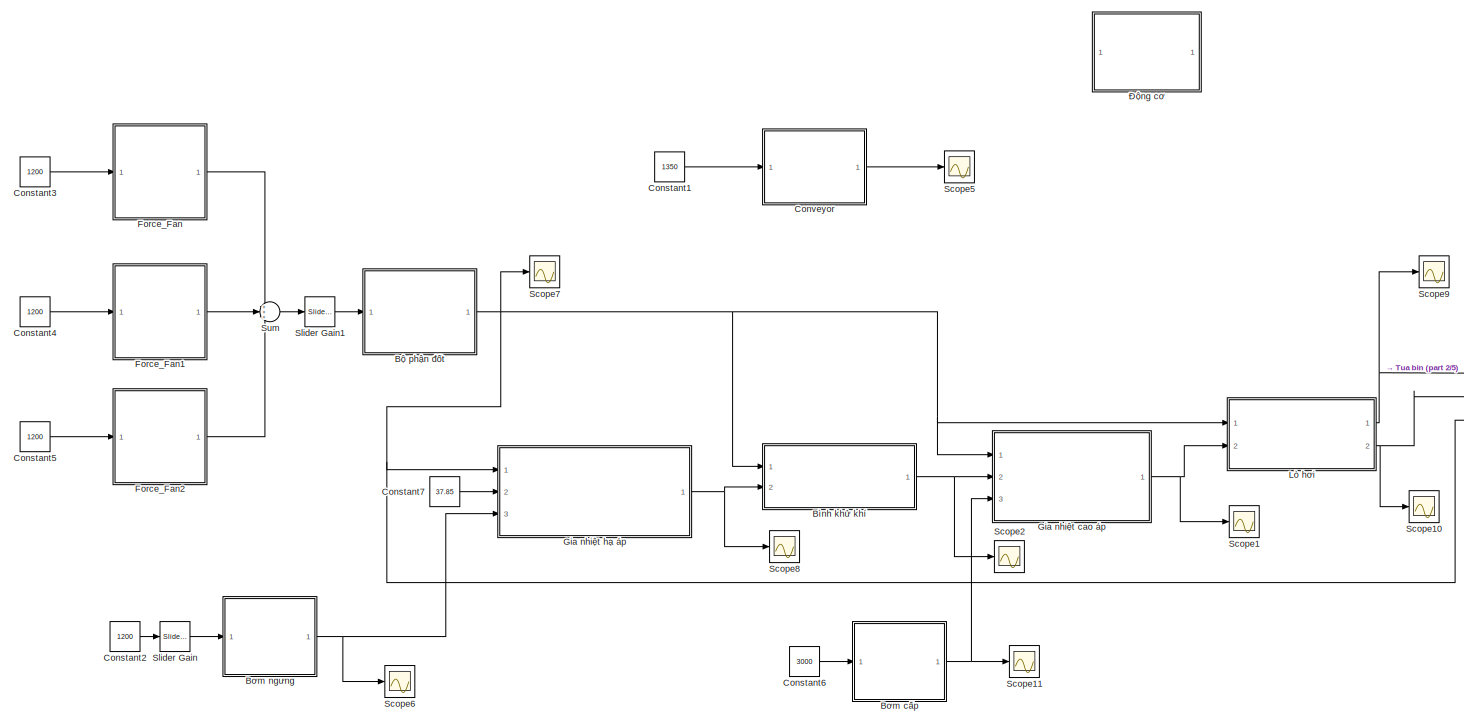
[diagram: root canvas - part 1/5, top left region]
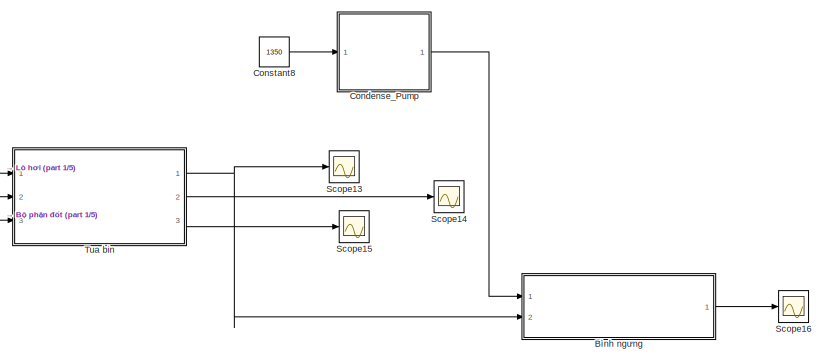
[diagram: root canvas - part 2/5, top right region]
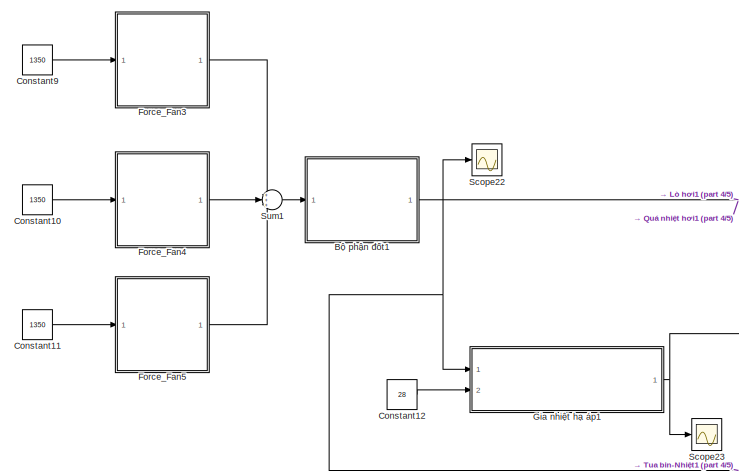
[diagram: root canvas - part 3/5, bottom left region]
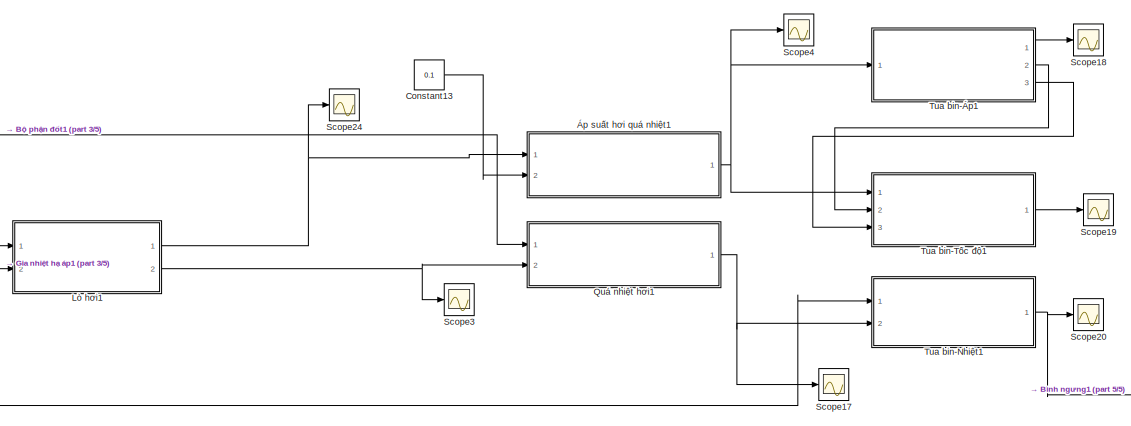
[diagram: root canvas - part 4/5, bottom center region]
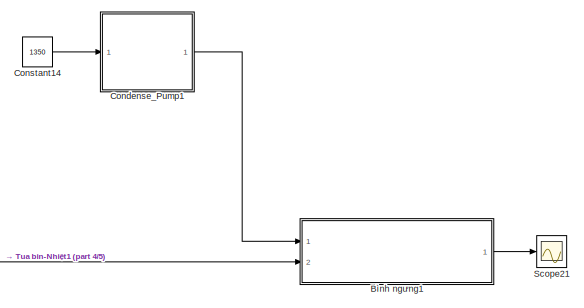
[diagram: root canvas - part 5/5, bottom right region]
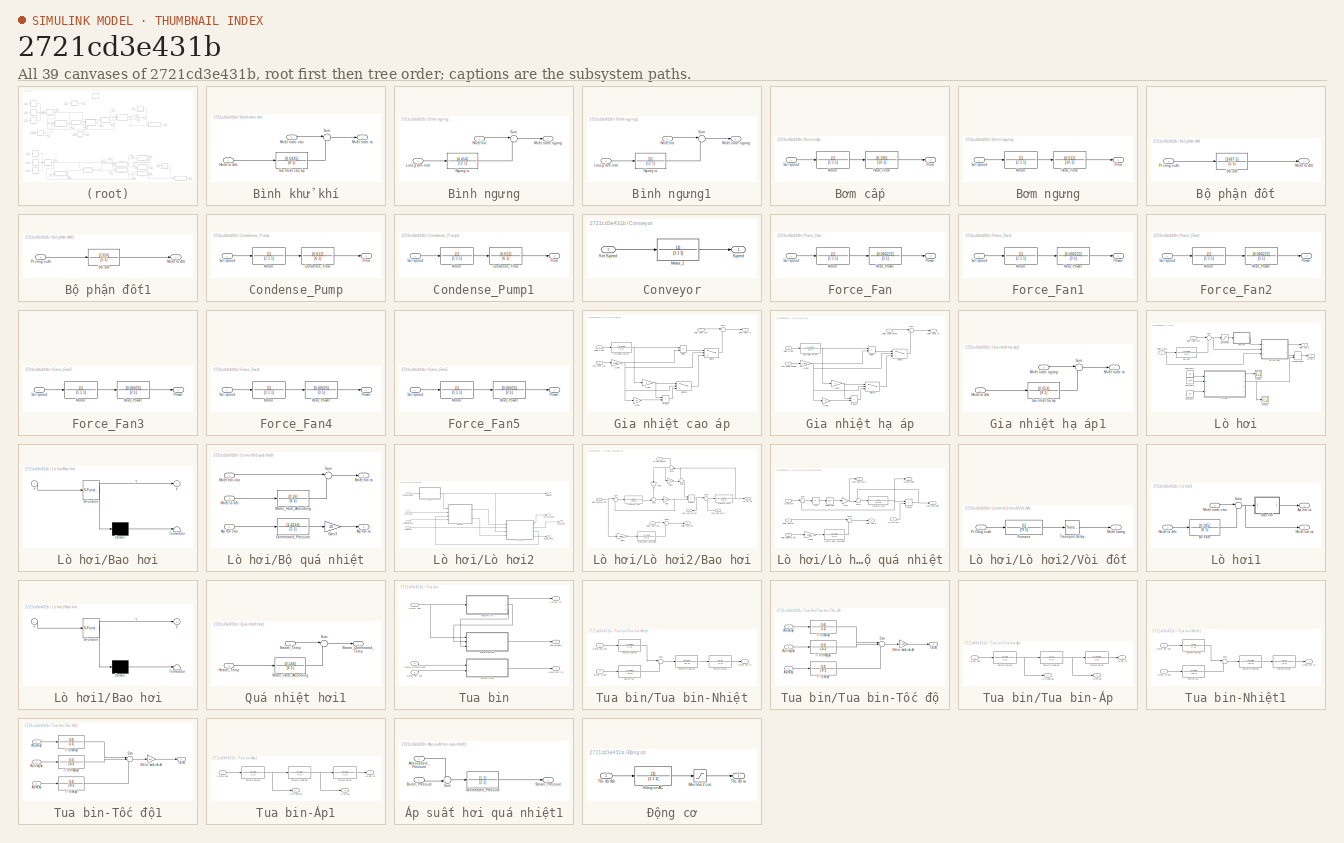
[diagram: thumbnail index - all 39 canvases of the model, root first then tree order]
MODEL slx_2721cd3e431b
KIND model
CONFIG AbsTol = auto
CONFIG EnableMultiTasking = off
CONFIG FixedStep = 0.05
CONFIG MaxStep = auto
CONFIG MinStep = auto
CONFIG RelTol = 1e-3
CONFIG SampleTimeConstraint = Unconstrained
CONFIG Solver = ode5
CONFIG SolverName = ode5
CONFIG StartTime = 0.0
CONFIG StopTime = 100
BLOCK [SubSystem] Bình khử khí
  Ports = [2, 1]
  RequestExecContextInheritance = off
BLOCK [TransferFcn] Bình khử khí/Gia nhiệt cao áp
  Denominator = [8 1]
  Numerator = [0.0435]
BLOCK [Inport] Bình khử khí/Nhiệt lò đốt
  IconDisplay = Port number
BLOCK [Outport] Bình khử khí/Nhiệt nước ra
  IconDisplay = Port number
BLOCK [Inport] Bình khử khí/Nhiệt nước vào
  IconDisplay = Port number
  Port = 2
BLOCK [Sum] Bình khử khí/Sum
  IconShape = round
  InputSameDT = off
  Inputs = |++
  OutDataTypeStr = Inherit: Inherit via internal rule
  Ports = [2, 1]
  SaturateOnIntegerOverflow = off
BLOCK [SubSystem] Bình ngưng
  Ports = [2, 1]
  RequestExecContextInheritance = off
BLOCK [Inport] Bình ngưng/LưuLg làm mát
  IconDisplay = Port number
BLOCK [TransferFcn] Bình ngưng/Ngưng tụ
  Denominator = [12 1]
  Numerator = [4.454]
BLOCK [Inport] Bình ngưng/Nhiệt hơi
  IconDisplay = Port number
  Port = 2
BLOCK [Outport] Bình ngưng/Nhiệt nước ngưng
  IconDisplay = Port number
BLOCK [Sum] Bình ngưng/Sum
  IconShape = round
  InputSameDT = off
  Inputs = |+-
  OutDataTypeStr = Inherit: Inherit via internal rule
  Ports = [2, 1]
  SaturateOnIntegerOverflow = off
BLOCK [SubSystem] Bình ngưng1
  Ports = [2, 1]
  RequestExecContextInheritance = off
BLOCK [Inport] Bình ngưng1/LưuLg làm mát
  IconDisplay = Port number
BLOCK [TransferFcn] Bình ngưng1/Ngưng tụ
  Denominator = [12 1]
  Numerator = [5]
BLOCK [Inport] Bình ngưng1/Nhiệt hơi
  IconDisplay = Port number
  Port = 2
BLOCK [Outport] Bình ngưng1/Nhiệt nước ngưng
  IconDisplay = Port number
BLOCK [Sum] Bình ngưng1/Sum
  IconShape = round
  InputSameDT = off
  Inputs = |+-
  OutDataTypeStr = Inherit: Inherit via internal rule
  Ports = [2, 1]
  SaturateOnIntegerOverflow = off
BLOCK [SubSystem] Bơm cấp
  Ports = [1, 1]
  RequestExecContextInheritance = off
BLOCK [Outport] Bơm cấp/Flow
  IconDisplay = Port number
BLOCK [TransferFcn] Bơm cấp/Heat_Flow
  Denominator = [10 1]
  Numerator = [0.195]
BLOCK [TransferFcn] Bơm cấp/Motor
  Denominator = [1 1 1]
BLOCK [Inport] Bơm cấp/Set speed
  IconDisplay = Port number
BLOCK [SubSystem] Bơm ngưng
  Ports = [1, 1]
  RequestExecContextInheritance = off
BLOCK [Outport] Bơm ngưng/Flow
  IconDisplay = Port number
BLOCK [TransferFcn] Bơm ngưng/Heat_Flow
  Denominator = [10 1]
  Numerator = [0.512]
BLOCK [TransferFcn] Bơm ngưng/Motor
  Denominator = [1 1 1]
BLOCK [Inport] Bơm ngưng/Set speed
  IconDisplay = Port number
BLOCK [SubSystem] Bộ phận đốt
  Ports = [1, 1]
  RequestExecContextInheritance = off
BLOCK [Outport] Bộ phận đốt/Nhiệt lò đốt
  IconDisplay = Port number
BLOCK [Inport] Bộ phận đốt/Pt công suất
  IconDisplay = Port number
BLOCK [TransferFcn] Bộ phận đốt/Vòi đốt
  Denominator = [5 1]
  Numerator = [1687.5]
BLOCK [SubSystem] Bộ phận đốt1
  Ports = [1, 1]
  RequestExecContextInheritance = off
BLOCK [Outport] Bộ phận đốt1/Nhiệt lò đốt
  IconDisplay = Port number
BLOCK [Inport] Bộ phận đốt1/Pt công suất
  IconDisplay = Port number
BLOCK [TransferFcn] Bộ phận đốt1/Vòi đốt
  Denominator = [5 1]
  Numerator = [1350]
BLOCK [SubSystem] Condense_Pump
  Ports = [1, 1]
  RequestExecContextInheritance = off
BLOCK [TransferFcn] Condense_Pump/Condense_Flow
  Denominator = [6 1]
  Numerator = [0.012]
BLOCK [Outport] Condense_Pump/Flow
  IconDisplay = Port number
BLOCK [TransferFcn] Condense_Pump/Motor
  Denominator = [1 1 1]
BLOCK [Inport] Condense_Pump/Set speed
  IconDisplay = Port number
BLOCK [SubSystem] Condense_Pump1
  Ports = [1, 1]
  RequestExecContextInheritance = off
BLOCK [TransferFcn] Condense_Pump1/Condense_Flow
  Denominator = [6 1]
  Numerator = [0.012]
BLOCK [Outport] Condense_Pump1/Flow
  IconDisplay = Port number
BLOCK [TransferFcn] Condense_Pump1/Motor
  Denominator = [1 1 1]
BLOCK [Inport] Condense_Pump1/Set speed
  IconDisplay = Port number
BLOCK [Constant] Constant1
  Value = 1350
BLOCK [Constant] Constant10
  Value = 1350
BLOCK [Constant] Constant11
  Value = 1350
BLOCK [Constant] Constant12
  Value = 28
BLOCK [Constant] Constant13
  Value = 0.1
BLOCK [Constant] Constant14
  Value = 1350
BLOCK [Constant] Constant2
  Value = 1200
BLOCK [Constant] Constant3
  Value = 1200
BLOCK [Constant] Constant4
  Value = 1200
BLOCK [Constant] Constant5
  Value = 1200
BLOCK [Constant] Constant6
  Value = 3000
BLOCK [Constant] Constant7
  Value = 37.85
BLOCK [Constant] Constant8
  Value = 1350
BLOCK [Constant] Constant9
  Value = 1350
BLOCK [SubSystem] Conveyor
  Ports = [1, 1]
  RequestExecContextInheritance = off
BLOCK [TransferFcn] Conveyor/Motor_1
  Denominator = [1 1 1]
BLOCK [Inport] Conveyor/Set Speed
  IconDisplay = Port number
BLOCK [Outport] Conveyor/Speed
  IconDisplay = Port number
BLOCK [SubSystem] Force_Fan
  Ports = [1, 1]
  RequestExecContextInheritance = off
BLOCK [TransferFcn] Force_Fan/Heat_Power
  Denominator = [3 1]
  Numerator = [0.000222]
BLOCK [TransferFcn] Force_Fan/Motor
  Denominator = [1 1 1]
BLOCK [Outport] Force_Fan/Power
  IconDisplay = Port number
BLOCK [Inport] Force_Fan/Set speed
  IconDisplay = Port number
BLOCK [SubSystem] Force_Fan1
  Ports = [1, 1]
  RequestExecContextInheritance = off
BLOCK [TransferFcn] Force_Fan1/Heat_Power
  Denominator = [3 1]
  Numerator = [0.000222]
BLOCK [TransferFcn] Force_Fan1/Motor
  Denominator = [1 1 1]
BLOCK [Outport] Force_Fan1/Power
  IconDisplay = Port number
BLOCK [Inport] Force_Fan1/Set speed
  IconDisplay = Port number
BLOCK [SubSystem] Force_Fan2
  Ports = [1, 1]
  RequestExecContextInheritance = off
BLOCK [TransferFcn] Force_Fan2/Heat_Power
  Denominator = [3 1]
  Numerator = [0.000222]
BLOCK [TransferFcn] Force_Fan2/Motor
  Denominator = [1 1 1]
BLOCK [Outport] Force_Fan2/Power
  IconDisplay = Port number
BLOCK [Inport] Force_Fan2/Set speed
  IconDisplay = Port number
BLOCK [SubSystem] Force_Fan3
  Ports = [1, 1]
  RequestExecContextInheritance = off
BLOCK [TransferFcn] Force_Fan3/Heat_Power
  Denominator = [3 1]
  Numerator = [0.00025]
BLOCK [TransferFcn] Force_Fan3/Motor
  Denominator = [1 1 1]
BLOCK [Outport] Force_Fan3/Power
  IconDisplay = Port number
BLOCK [Inport] Force_Fan3/Set speed
  IconDisplay = Port number
BLOCK [SubSystem] Force_Fan4
  Ports = [1, 1]
  RequestExecContextInheritance = off
BLOCK [TransferFcn] Force_Fan4/Heat_Power
  Denominator = [3 1]
  Numerator = [0.00025]
BLOCK [TransferFcn] Force_Fan4/Motor
  Denominator = [1 1 1]
BLOCK [Outport] Force_Fan4/Power
  IconDisplay = Port number
BLOCK [Inport] Force_Fan4/Set speed
  IconDisplay = Port number
BLOCK [SubSystem] Force_Fan5
  Ports = [1, 1]
  RequestExecContextInheritance = off
BLOCK [TransferFcn] Force_Fan5/Heat_Power
  Denominator = [3 1]
  Numerator = [0.00025]
BLOCK [TransferFcn] Force_Fan5/Motor
  Denominator = [1 1 1]
BLOCK [Outport] Force_Fan5/Power
  IconDisplay = Port number
BLOCK [Inport] Force_Fan5/Set speed
  IconDisplay = Port number
BLOCK [SubSystem] Gia nhiệt cao áp
  Ports = [3, 1]
  RequestExecContextInheritance = off
BLOCK [Product] Gia nhiệt cao áp/Divide
  InputSameDT = off
  Inputs = */
  OutDataTypeStr = Inherit: Inherit via internal rule
  Ports = [2, 1]
  RndMeth = Floor
  SaturateOnIntegerOverflow = off
BLOCK [Gain] Gia nhiệt cao áp/Gain1
  Gain = 2
  OutDataTypeStr = Inherit: Inherit via internal rule
  ParamDataTypeStr = Inherit: Inherit via internal rule
  SaturateOnIntegerOverflow = off
BLOCK [Gain] Gia nhiệt cao áp/Gain2
  Gain = 1/585
  OutDataTypeStr = Inherit: Inherit via internal rule
  ParamDataTypeStr = Inherit: Inherit via internal rule
  SaturateOnIntegerOverflow = off
BLOCK [Gain] Gia nhiệt cao áp/Gain3
  Gain = 10
  OutDataTypeStr = Inherit: Inherit via internal rule
  ParamDataTypeStr = Inherit: Inherit via internal rule
  SaturateOnIntegerOverflow = off
BLOCK [TransferFcn] Gia nhiệt cao áp/Gia nhiệt cao áp
  Denominator = [8 1]
  Numerator = [0.0706]
BLOCK [Inport] Gia nhiệt cao áp/LưuL nước cấp
  IconDisplay = Port number
  Port = 3
BLOCK [Inport] Gia nhiệt cao áp/Nhiệt lò đốt
  IconDisplay = Port number
BLOCK [Outport] Gia nhiệt cao áp/Nhiệt nước ra
  IconDisplay = Port number
BLOCK [Inport] Gia nhiệt cao áp/Nhiệt nước vào
  IconDisplay = Port number
  Port = 2
BLOCK [Product] Gia nhiệt cao áp/Product
  InputSameDT = off
  OutDataTypeStr = Inherit: Inherit via internal rule
  Ports = [2, 1]
  RndMeth = Floor
  SaturateOnIntegerOverflow = off
BLOCK [Sum] Gia nhiệt cao áp/Sum1
  IconShape = round
  InputSameDT = off
  Inputs = |++
  OutDataTypeStr = Inherit: Inherit via internal rule
  Ports = [2, 1]
  SaturateOnIntegerOverflow = off
BLOCK [Switch] Gia nhiệt cao áp/Switch
  InputSameDT = off
  SaturateOnIntegerOverflow = off
  Threshold = 0.5
BLOCK [Switch] Gia nhiệt cao áp/Switch1
  InputSameDT = off
  SaturateOnIntegerOverflow = off
  Threshold = 0.1
BLOCK [SubSystem] Gia nhiệt hạ áp
  Ports = [3, 1]
  RequestExecContextInheritance = off
BLOCK [Product] Gia nhiệt hạ áp/Divide
  InputSameDT = off
  Inputs = */
  OutDataTypeStr = Inherit: Inherit via internal rule
  Ports = [2, 1]
  RndMeth = Floor
  SaturateOnIntegerOverflow = off
BLOCK [Gain] Gia nhiệt hạ áp/Gain1
  Gain = 2
  OutDataTypeStr = Inherit: Inherit via internal rule
  ParamDataTypeStr = Inherit: Inherit via internal rule
  SaturateOnIntegerOverflow = off
BLOCK [Gain] Gia nhiệt hạ áp/Gain2
  Gain = 1/615
  OutDataTypeStr = Inherit: Inherit via internal rule
  ParamDataTypeStr = Inherit: Inherit via internal rule
  SaturateOnIntegerOverflow = off
BLOCK [Gain] Gia nhiệt hạ áp/Gain3
  Gain = 10
  OutDataTypeStr = Inherit: Inherit via internal rule
  ParamDataTypeStr = Inherit: Inherit via internal rule
  SaturateOnIntegerOverflow = off
BLOCK [TransferFcn] Gia nhiệt hạ áp/Gia nhiệt hạ áp
  Denominator = [8 1]
  Numerator = [0.0767]
BLOCK [Inport] Gia nhiệt hạ áp/LưuL nước ngưng
  IconDisplay = Port number
  Port = 3
BLOCK [Inport] Gia nhiệt hạ áp/Nhiệt lò đốt
  IconDisplay = Port number
BLOCK [Inport] Gia nhiệt hạ áp/Nhiệt nước ngưng
  IconDisplay = Port number
  Port = 2
BLOCK [Outport] Gia nhiệt hạ áp/Nhiệt nước ra
  IconDisplay = Port number
BLOCK [Product] Gia nhiệt hạ áp/Product
  InputSameDT = off
  OutDataTypeStr = Inherit: Inherit via internal rule
  Ports = [2, 1]
  RndMeth = Floor
  SaturateOnIntegerOverflow = off
BLOCK [Sum] Gia nhiệt hạ áp/Sum
  IconShape = round
  InputSameDT = off
  Inputs = |++
  OutDataTypeStr = Inherit: Inherit via internal rule
  Ports = [2, 1]
  SaturateOnIntegerOverflow = off
BLOCK [Switch] Gia nhiệt hạ áp/Switch
  InputSameDT = off
  SaturateOnIntegerOverflow = off
  Threshold = 0.5
BLOCK [Switch] Gia nhiệt hạ áp/Switch1
  InputSameDT = off
  SaturateOnIntegerOverflow = off
  Threshold = 0.1
BLOCK [SubSystem] Gia nhiệt hạ áp1
  Ports = [2, 1]
  RequestExecContextInheritance = off
BLOCK [TransferFcn] Gia nhiệt hạ áp1/Gia nhiệt hạ áp
  Denominator = [8 1]
  Numerator = [0.053]
BLOCK [Inport] Gia nhiệt hạ áp1/Nhiệt lò đốt
  IconDisplay = Port number
BLOCK [Inport] Gia nhiệt hạ áp1/Nhiệt nước ngưng
  IconDisplay = Port number
  Port = 2
BLOCK [Outport] Gia nhiệt hạ áp1/Nhiệt nước ra
  IconDisplay = Port number
BLOCK [Sum] Gia nhiệt hạ áp1/Sum
  IconShape = round
  InputSameDT = off
  Inputs = |++
  OutDataTypeStr = Inherit: Inherit via internal rule
  Ports = [2, 1]
  SaturateOnIntegerOverflow = off
BLOCK [SubSystem] Lò hơi
  Ports = [2, 2]
  RequestExecContextInheritance = off
BLOCK [SubSystem] Lò hơi/Bao hơi
  ErrorFcn = Stateflow.Translate.translate
  PermitHierarchicalResolution = ExplicitOnly
  Ports = [1, 1]
  RequestExecContextInheritance = off
  SFBlockType = MATLAB Function
  TreatAsAtomicUnit = on
BLOCK [Demux] Lò hơi/Bao hơi/ Demux 
  Outputs = 1
  Ports = [1, 1]
BLOCK [S-Function] Lò hơi/Bao hơi/ SFunction 
  EnableBusSupport = on
  FunctionName = sf_sfun
  PortCounts = [1 2]
  Ports = [1, 2]
  SFcnIsStateOwnerBlock = off
  SFunctionDeploymentMode = off
  Tag = Stateflow S-Function Mohinhmoix 2
BLOCK [Terminator] Lò hơi/Bao hơi/ Terminator 
BLOCK [Inport] Lò hơi/Bao hơi/u
  IconDisplay = Port number
BLOCK [Outport] Lò hơi/Bao hơi/y
  IconDisplay = Port number
BLOCK [TransferFcn] Lò hơi/Bộ hâm
  Denominator = [8 1]
  Numerator = [0.0405]
BLOCK [SubSystem] Lò hơi/Bộ quá nhiệt
  Ports = [3, 2]
  RequestExecContextInheritance = off
BLOCK [Gain] Lò hơi/Bộ quá nhiệt/Gain3
  Gain = 10
  OutDataTypeStr = Inherit: Inherit via internal rule
  ParamDataTypeStr = Inherit: Inherit via internal rule
  SaturateOnIntegerOverflow = off
BLOCK [Outport] Lò hơi/Bộ quá nhiệt/Nhiệt hơi ra
  IconDisplay = Port number
BLOCK [Inport] Lò hơi/Bộ quá nhiệt/Nhiệt hơi vào
  IconDisplay = Port number
  Port = 2
BLOCK [Inport] Lò hơi/Bộ quá nhiệt/Nhiệt lò đốt
  IconDisplay = Port number
  Port = 3
BLOCK [TransferFcn] Lò hơi/Bộ quá nhiệt/Overheated_Pressure
  Denominator = [2 1]
  Numerator = [1.4214]
BLOCK [Sum] Lò hơi/Bộ quá nhiệt/Sum
  IconShape = round
  InputSameDT = off
  Inputs = |++
  OutDataTypeStr = Inherit: Inherit via internal rule
  Ports = [2, 1]
  SaturateOnIntegerOverflow = off
BLOCK [TransferFcn] Lò hơi/Bộ quá nhiệt/Water_Heat_Absorbing
  Denominator = [6 1]
  Numerator = [0.16]
BLOCK [Outport] Lò hơi/Bộ quá nhiệt/Áp hơi ra
  IconDisplay = Port number
  Port = 2
BLOCK [Inport] Lò hơi/Bộ quá nhiệt/Áp hơi vào
  IconDisplay = Port number
BLOCK [Constant] Lò hơi/Constant1
  Value = 0.5
BLOCK [Constant] Lò hơi/Constant2
  Value = 2640
BLOCK [Constant] Lò hơi/Constant7
  Value = 0.8
BLOCK [SubSystem] Lò hơi/Lò hơi2
  Ports = [4, 4]
  RequestExecContextInheritance = off
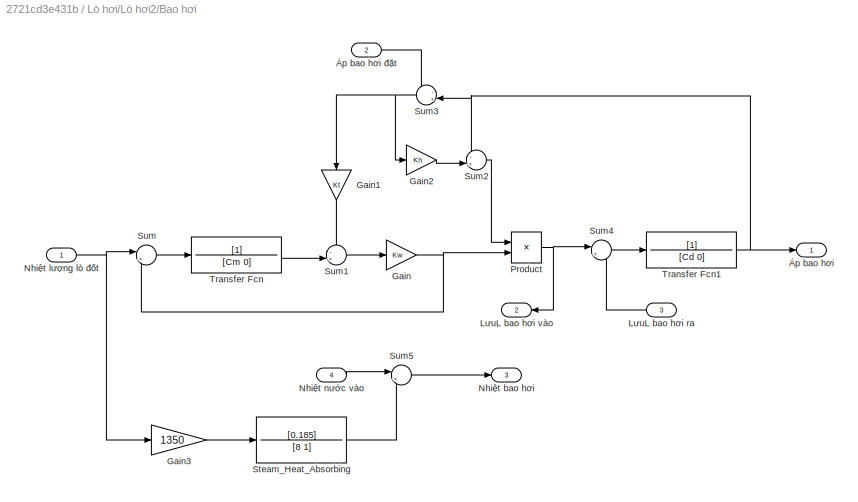
BLOCK [SubSystem] Lò hơi/Lò hơi2/Bao hơi
  Ports = [4, 3]
  RequestExecContextInheritance = off
BLOCK [Gain] Lò hơi/Lò hơi2/Bao hơi/Gain
  Gain = Kw
  OutDataTypeStr = Inherit: Inherit via internal rule
  ParamDataTypeStr = Inherit: Inherit via internal rule
  SaturateOnIntegerOverflow = off
BLOCK [Gain] Lò hơi/Lò hơi2/Bao hơi/Gain1
  Gain = Kt
  OutDataTypeStr = Inherit: Inherit via internal rule
  ParamDataTypeStr = Inherit: Inherit via internal rule
  SaturateOnIntegerOverflow = off
BLOCK [Gain] Lò hơi/Lò hơi2/Bao hơi/Gain2
  Gain = Kh
  OutDataTypeStr = Inherit: Inherit via internal rule
  ParamDataTypeStr = Inherit: Inherit via internal rule
  SaturateOnIntegerOverflow = off
BLOCK [Gain] Lò hơi/Lò hơi2/Bao hơi/Gain3
  Gain = 1350
  OutDataTypeStr = Inherit: Inherit via internal rule
  ParamDataTypeStr = Inherit: Inherit via internal rule
  SaturateOnIntegerOverflow = off
BLOCK [Inport] Lò hơi/Lò hơi2/Bao hơi/LưuL bao hơi ra
  IconDisplay = Port number
  Port = 3
BLOCK [Outport] Lò hơi/Lò hơi2/Bao hơi/LưuL bao hơi vào
  IconDisplay = Port number
  Port = 2
BLOCK [Outport] Lò hơi/Lò hơi2/Bao hơi/Nhiệt bao hơi
  IconDisplay = Port number
  Port = 3
BLOCK [Inport] Lò hơi/Lò hơi2/Bao hơi/Nhiệt lượng lò đốt
  IconDisplay = Port number
BLOCK [Inport] Lò hơi/Lò hơi2/Bao hơi/Nhiệt nước vào
  IconDisplay = Port number
  Port = 4
BLOCK [Product] Lò hơi/Lò hơi2/Bao hơi/Product
  InputSameDT = off
  OutDataTypeStr = Inherit: Inherit via internal rule
  Ports = [2, 1]
  RndMeth = Floor
  SaturateOnIntegerOverflow = off
BLOCK [TransferFcn] Lò hơi/Lò hơi2/Bao hơi/Steam_Heat_Absorbing
  Denominator = [8 1]
  Numerator = [0.185]
BLOCK [Sum] Lò hơi/Lò hơi2/Bao hơi/Sum
  IconShape = round
  InputSameDT = off
  Inputs = |+-
  OutDataTypeStr = Inherit: Inherit via internal rule
  Ports = [2, 1]
  SaturateOnIntegerOverflow = off
BLOCK [Sum] Lò hơi/Lò hơi2/Bao hơi/Sum1
  IconShape = round
  InputSameDT = off
  Inputs = -+|
  OutDataTypeStr = Inherit: Inherit via internal rule
  Ports = [2, 1]
  SaturateOnIntegerOverflow = off
BLOCK [Sum] Lò hơi/Lò hơi2/Bao hơi/Sum2
  IconShape = round
  InputSameDT = off
  Inputs = -+|
  OutDataTypeStr = Inherit: Inherit via internal rule
  Ports = [2, 1]
  SaturateOnIntegerOverflow = off
BLOCK [Sum] Lò hơi/Lò hơi2/Bao hơi/Sum3
  IconShape = round
  InputSameDT = off
  Inputs = -+|
  OutDataTypeStr = Inherit: Inherit via internal rule
  Ports = [2, 1]
  SaturateOnIntegerOverflow = off
BLOCK [Sum] Lò hơi/Lò hơi2/Bao hơi/Sum4
  IconShape = round
  InputSameDT = off
  Inputs = |+-
  OutDataTypeStr = Inherit: Inherit via internal rule
  Ports = [2, 1]
  SaturateOnIntegerOverflow = off
BLOCK [Sum] Lò hơi/Lò hơi2/Bao hơi/Sum5
  IconShape = round
  InputSameDT = off
  Inputs = |++
  OutDataTypeStr = Inherit: Inherit via internal rule
  Ports = [2, 1]
  SaturateOnIntegerOverflow = off
BLOCK [TransferFcn] Lò hơi/Lò hơi2/Bao hơi/Transfer Fcn
  Denominator = [Cm 0]
BLOCK [TransferFcn] Lò hơi/Lò hơi2/Bao hơi/Transfer Fcn1
  Denominator = [Cd 0]
BLOCK [Outport] Lò hơi/Lò hơi2/Bao hơi/Áp bao hơi
  IconDisplay = Port number
BLOCK [Inport] Lò hơi/Lò hơi2/Bao hơi/Áp bao hơi đặt
  IconDisplay = Port number
  Port = 2
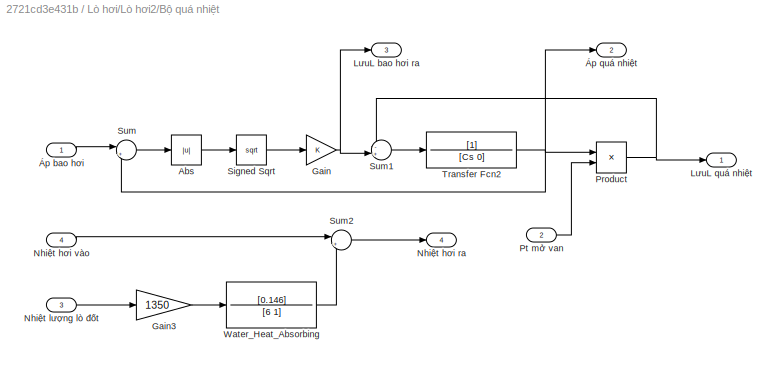
BLOCK [SubSystem] Lò hơi/Lò hơi2/Bộ quá nhiệt
  Ports = [4, 4]
  RequestExecContextInheritance = off
BLOCK [Abs] Lò hơi/Lò hơi2/Bộ quá nhiệt/Abs
  SaturateOnIntegerOverflow = off
BLOCK [Gain] Lò hơi/Lò hơi2/Bộ quá nhiệt/Gain
  Gain = K
  OutDataTypeStr = Inherit: Inherit via internal rule
  ParamDataTypeStr = Inherit: Inherit via internal rule
  SaturateOnIntegerOverflow = off
BLOCK [Gain] Lò hơi/Lò hơi2/Bộ quá nhiệt/Gain3
  Gain = 1350
  OutDataTypeStr = Inherit: Inherit via internal rule
  ParamDataTypeStr = Inherit: Inherit via internal rule
  SaturateOnIntegerOverflow = off
BLOCK [Outport] Lò hơi/Lò hơi2/Bộ quá nhiệt/LưuL bao hơi ra
  IconDisplay = Port number
  Port = 3
BLOCK [Outport] Lò hơi/Lò hơi2/Bộ quá nhiệt/LưuL quá nhiệt
  IconDisplay = Port number
BLOCK [Outport] Lò hơi/Lò hơi2/Bộ quá nhiệt/Nhiệt hơi ra
  IconDisplay = Port number
  Port = 4
BLOCK [Inport] Lò hơi/Lò hơi2/Bộ quá nhiệt/Nhiệt hơi vào
  IconDisplay = Port number
  Port = 4
BLOCK [Inport] Lò hơi/Lò hơi2/Bộ quá nhiệt/Nhiệt lượng lò đốt
  IconDisplay = Port number
  Port = 3
BLOCK [Product] Lò hơi/Lò hơi2/Bộ quá nhiệt/Product
  InputSameDT = off
  OutDataTypeStr = Inherit: Inherit via internal rule
  Ports = [2, 1]
  RndMeth = Floor
  SaturateOnIntegerOverflow = off
BLOCK [Inport] Lò hơi/Lò hơi2/Bộ quá nhiệt/Pt mở van
  IconDisplay = Port number
  Port = 2
BLOCK [Sqrt] Lò hơi/Lò hơi2/Bộ quá nhiệt/Signed Sqrt
BLOCK [Sum] Lò hơi/Lò hơi2/Bộ quá nhiệt/Sum
  IconShape = round
  InputSameDT = off
  Inputs = |+-
  OutDataTypeStr = Inherit: Inherit via internal rule
  Ports = [2, 1]
  SaturateOnIntegerOverflow = off
BLOCK [Sum] Lò hơi/Lò hơi2/Bộ quá nhiệt/Sum1
  IconShape = round
  InputSameDT = off
  Inputs = -+|
  OutDataTypeStr = Inherit: Inherit via internal rule
  Ports = [2, 1]
  SaturateOnIntegerOverflow = off
BLOCK [Sum] Lò hơi/Lò hơi2/Bộ quá nhiệt/Sum2
  IconShape = round
  InputSameDT = off
  Inputs = |++
  OutDataTypeStr = Inherit: Inherit via internal rule
  Ports = [2, 1]
  SaturateOnIntegerOverflow = off
BLOCK [TransferFcn] Lò hơi/Lò hơi2/Bộ quá nhiệt/Transfer Fcn2
  Denominator = [Cs 0]
BLOCK [TransferFcn] Lò hơi/Lò hơi2/Bộ quá nhiệt/Water_Heat_Absorbing
  Denominator = [6 1]
  Numerator = [0.146]
BLOCK [Inport] Lò hơi/Lò hơi2/Bộ quá nhiệt/Áp bao hơi
  IconDisplay = Port number
BLOCK [Outport] Lò hơi/Lò hơi2/Bộ quá nhiệt/Áp quá nhiệt
  IconDisplay = Port number
  Port = 2
BLOCK [Outport] Lò hơi/Lò hơi2/LưuL quá nhiệt
  IconDisplay = Port number
BLOCK [Outport] Lò hơi/Lò hơi2/Nhiệt lò đốt
  IconDisplay = Port number
  Port = 4
BLOCK [Inport] Lò hơi/Lò hơi2/Nhiệt nước vào
  IconDisplay = Port number
  Port = 3
BLOCK [Outport] Lò hơi/Lò hơi2/Nhiệt quá nhiệt
  IconDisplay = Port number
  Port = 3
BLOCK [Inport] Lò hơi/Lò hơi2/Pt Công suất đốt
  IconDisplay = Port number
BLOCK [Inport] Lò hơi/Lò hơi2/Pt mở van ra
  IconDisplay = Port number
  Port = 4
BLOCK [SubSystem] Lò hơi/Lò hơi2/Vòi đốt
  Ports = [1, 1]
  RequestExecContextInheritance = off
BLOCK [TransferFcn] Lò hơi/Lò hơi2/Vòi đốt/Furnace
  Denominator = [Tf 1]
BLOCK [Outport] Lò hơi/Lò hơi2/Vòi đốt/Nhiệt lượng
  IconDisplay = Port number
BLOCK [Inport] Lò hơi/Lò hơi2/Vòi đốt/Pt Công suất
  IconDisplay = Port number
BLOCK [TransportDelay] Lò hơi/Lò hơi2/Vòi đốt/Transport Delay
  DelayTime = Td
  Ports = [1, 1]
BLOCK [Inport] Lò hơi/Lò hơi2/Áp nước vào
  IconDisplay = Port number
  Port = 2
BLOCK [Outport] Lò hơi/Lò hơi2/Áp quá nhiệt
  IconDisplay = Port number
  Port = 2
BLOCK [ManualSwitch] Lò hơi/Manual Switch
BLOCK [Outport] Lò hơi/Nhiệt hơi ra
  IconDisplay = Port number
  Port = 2
BLOCK [Inport] Lò hơi/Nhiệt lò đốt
  IconDisplay = Port number
BLOCK [Inport] Lò hơi/Nhiệt nước vào
  IconDisplay = Port number
  Port = 2
BLOCK [Saturate] Lò hơi/Saturation
  InputPortMap = u0
  LowerLimit = 0
  Ports = [1, 1]
  UpperLimit = 425
BLOCK [Scope] Lò hơi/Scope1
  Floating = off
  NumInputPorts = 1
  Ports = [1]
  ScopeSpecificationString = Simulink.scopes.TimeScopeBlockCfg('CurrentConfiguration', extmgr.ConfigurationSet(extmgr.Configuration('Core','General UI',true),extmgr.Configuration('Core','Source UI',true),extmgr.Configuration('Sources','WiredSimulink',true,'DataLoggingVariableName','ScopeData2'),extmgr.Configuration('Visuals','Time Domain',true,'SerializedDisplays',{struct('MinYLimReal','-185.73798','MaxYLimReal','1671.64179',...<+1459ch>
BLOCK [Scope] Lò hơi/Scope9
  Floating = off
  NumInputPorts = 1
  Ports = [1]
  ScopeSpecificationString = Simulink.scopes.TimeScopeBlockCfg('CurrentConfiguration', extmgr.ConfigurationSet(extmgr.Configuration('Core','General UI',true),extmgr.Configuration('Core','Source UI',true),extmgr.Configuration('Sources','WiredSimulink',true,'DataLoggingVariableName','ScopeData1'),extmgr.Configuration('Visuals','Time Domain',true,'SerializedDisplays',{struct('MinYLimReal','-185.73798','MaxYLimReal','1671.64179',...<+1459ch>
BLOCK [Sum] Lò hơi/Sum
  IconShape = round
  InputSameDT = off
  Inputs = |++
  OutDataTypeStr = Inherit: Inherit via internal rule
  Ports = [2, 1]
  SaturateOnIntegerOverflow = off
BLOCK [Outport] Lò hơi/Áp hơi ra
  IconDisplay = Port number
BLOCK [SubSystem] Lò hơi1
  Ports = [2, 2]
  RequestExecContextInheritance = off
BLOCK [SubSystem] Lò hơi1/Bao hơi
  ErrorFcn = Stateflow.Translate.translate
  PermitHierarchicalResolution = ExplicitOnly
  Ports = [1, 1]
  RequestExecContextInheritance = off
  SFBlockType = MATLAB Function
  TreatAsAtomicUnit = on
BLOCK [Demux] Lò hơi1/Bao hơi/ Demux 
  Outputs = 1
  Ports = [1, 1]
BLOCK [S-Function] Lò hơi1/Bao hơi/ SFunction 
  EnableBusSupport = on
  FunctionName = sf_sfun
  PortCounts = [1 2]
  Ports = [1, 2]
  SFcnIsStateOwnerBlock = off
  SFunctionDeploymentMode = off
  Tag = Stateflow S-Function Mohinhmoix 1
BLOCK [Terminator] Lò hơi1/Bao hơi/ Terminator 
BLOCK [Inport] Lò hơi1/Bao hơi/u
  IconDisplay = Port number
BLOCK [Outport] Lò hơi1/Bao hơi/y
  IconDisplay = Port number
BLOCK [TransferFcn] Lò hơi1/Bộ hâm
  Denominator = [8 1]
  Numerator = [0.185]
BLOCK [Outport] Lò hơi1/Nhiệt hơi ra
  IconDisplay = Port number
  Port = 2
BLOCK [Inport] Lò hơi1/Nhiệt lò đốt
  IconDisplay = Port number
BLOCK [Inport] Lò hơi1/Nhiệt nước vào
  IconDisplay = Port number
  Port = 2
BLOCK [Sum] Lò hơi1/Sum
  IconShape = round
  InputSameDT = off
  Inputs = |++
  OutDataTypeStr = Inherit: Inherit via internal rule
  Ports = [2, 1]
  SaturateOnIntegerOverflow = off
BLOCK [Outport] Lò hơi1/Áp hơi ra
  IconDisplay = Port number
BLOCK [SubSystem] Quá nhiệt hơi1
  Ports = [2, 1]
  RequestExecContextInheritance = off
BLOCK [Inport] Quá nhiệt hơi1/Heater_Temp
  IconDisplay = Port number
BLOCK [Outport] Quá nhiệt hơi1/Steam_Overheated_Temp
  IconDisplay = Port number
BLOCK [Inport] Quá nhiệt hơi1/Steam_Temp
  IconDisplay = Port number
  Port = 2
BLOCK [Sum] Quá nhiệt hơi1/Sum
  IconShape = round
  InputSameDT = off
  Inputs = |++
  OutDataTypeStr = Inherit: Inherit via internal rule
  Ports = [2, 1]
  SaturateOnIntegerOverflow = off
BLOCK [TransferFcn] Quá nhiệt hơi1/Water_Heat_Absorbing
  Denominator = [6 1]
  Numerator = [0.146]
BLOCK [Scope] Scope1
  Floating = off
  NumInputPorts = 1
  Ports = [1]
  ScopeSpecificationString = Simulink.scopes.TimeScopeBlockCfg('CurrentConfiguration', extmgr.ConfigurationSet(extmgr.Configuration('Core','General UI',true),extmgr.Configuration('Core','Source UI',true),extmgr.Configuration('Sources','WiredSimulink',true,'DataLoggingVariableName','ScopeData3'),extmgr.Configuration('Visuals','Time Domain',true,'SerializedDisplays',{struct('MinYLimReal','294.67474','MaxYLimReal','295.42313','Y...<+1464ch>
BLOCK [Scope] Scope10
  Floating = off
  NumInputPorts = 1
  Ports = [1]
  ScopeSpecificationString = Simulink.scopes.TimeScopeBlockCfg('CurrentConfiguration', extmgr.ConfigurationSet(extmgr.Configuration('Core','General UI',true),extmgr.Configuration('Core','Source UI',true),extmgr.Configuration('Sources','WiredSimulink',true,'DataLoggingVariableName','ScopeData6'),extmgr.Configuration('Visuals','Time Domain',true,'SerializedDisplays',{struct('MinYLimReal','564.10372','MaxYLimReal','565.94793','Y...<+1455ch>
BLOCK [Scope] Scope11
  Floating = off
  NumInputPorts = 1
  Ports = [1]
  ScopeSpecificationString = Simulink.scopes.TimeScopeBlockCfg('CurrentConfiguration', extmgr.ConfigurationSet(extmgr.Configuration('Core','General UI',true),extmgr.Configuration('Core','Source UI',true),extmgr.Configuration('Sources','WiredSimulink',true,'DataLoggingVariableName','ScopeData2'),extmgr.Configuration('Visuals','Time Domain',true,'SerializedDisplays',{struct('MinYLimReal','580.32002','MaxYLimReal','587.56174','Y...<+1454ch>
BLOCK [Scope] Scope13
  Floating = off
  NumInputPorts = 1
  Ports = [1]
  ScopeSpecificationString = Simulink.scopes.TimeScopeBlockCfg('CurrentConfiguration', extmgr.ConfigurationSet(extmgr.Configuration('Core','General UI',true),extmgr.Configuration('Core','Source UI',true),extmgr.Configuration('Sources','WiredSimulink',true,'DataLoggingVariableName','ScopeData1'),extmgr.Configuration('Visuals','Time Domain',true,'SerializedDisplays',{struct('MinYLimReal','-12.61159','MaxYLimReal','120','YLabelR...<+1462ch>
BLOCK [Scope] Scope14
  Floating = off
  NumInputPorts = 1
  Ports = [1]
  ScopeSpecificationString = Simulink.scopes.TimeScopeBlockCfg('CurrentConfiguration', extmgr.ConfigurationSet(extmgr.Configuration('Core','General UI',true),extmgr.Configuration('Core','Source UI',true),extmgr.Configuration('Sources','WiredSimulink',true,'DataLoggingVariableName','ScopeData2'),extmgr.Configuration('Visuals','Time Domain',true,'SerializedDisplays',{struct('MinYLimReal','0','MaxYLimReal','0.2','YLabelReal','',...<+1444ch>
BLOCK [Scope] Scope15
  Floating = off
  NumInputPorts = 1
  Ports = [1]
  ScopeSpecificationString = Simulink.scopes.TimeScopeBlockCfg('CurrentConfiguration', extmgr.ConfigurationSet(extmgr.Configuration('Core','General UI',true),extmgr.Configuration('Core','Source UI',true),extmgr.Configuration('Sources','WiredSimulink',true,'DataLoggingVariableName','ScopeData3'),extmgr.Configuration('Visuals','Time Domain',true,'SerializedDisplays',{struct('MinYLimReal','-364.14697','MaxYLimReal','3277.3227','...<+1505ch>
BLOCK [Scope] Scope16
  Floating = off
  NumInputPorts = 1
  Ports = [1]
  ScopeSpecificationString = Simulink.scopes.TimeScopeBlockCfg('CurrentConfiguration', extmgr.ConfigurationSet(extmgr.Configuration('Core','General UI',true),extmgr.Configuration('Core','Source UI',true),extmgr.Configuration('Sources','WiredSimulink',true,'DataLoggingVariableName','ScopeData4'),extmgr.Configuration('Visuals','Time Domain',true,'SerializedDisplays',{struct('MinYLimReal','23.81747','MaxYLimReal','32.49101','YLa...<+1448ch>
BLOCK [Scope] Scope17
  Floating = off
  NumInputPorts = 1
  Ports = [1]
  ScopeSpecificationString = Simulink.scopes.TimeScopeBlockCfg('CurrentConfiguration', extmgr.ConfigurationSet(extmgr.Configuration('Core','General UI',true),extmgr.Configuration('Core','Source UI',true),extmgr.Configuration('Sources','WiredSimulink',true,'DataLoggingVariableName','ScopeData1'),extmgr.Configuration('Visuals','Time Domain',true,'SerializedDisplays',{struct('MinYLimReal','-37.60926','MaxYLimReal','618.4833','YL...<+1451ch>
BLOCK [Scope] Scope18
  Floating = off
  NumInputPorts = 1
  Ports = [1]
  ScopeSpecificationString = Simulink.scopes.TimeScopeBlockCfg('CurrentConfiguration', extmgr.ConfigurationSet(extmgr.Configuration('Core','General UI',true),extmgr.Configuration('Core','Source UI',true),extmgr.Configuration('Sources','WiredSimulink',true,'DataLoggingVariableName','ScopeData2'),extmgr.Configuration('Visuals','Time Domain',true,'SerializedDisplays',{struct('MinYLimReal','-0.00142','MaxYLimReal','0.01278','YLab...<+1445ch>
BLOCK [Scope] Scope19
  Floating = off
  NumInputPorts = 1
  Ports = [1]
  ScopeSpecificationString = Simulink.scopes.TimeScopeBlockCfg('CurrentConfiguration', extmgr.ConfigurationSet(extmgr.Configuration('Core','General UI',true),extmgr.Configuration('Core','Source UI',true),extmgr.Configuration('Sources','WiredSimulink',true,'DataLoggingVariableName','ScopeData3'),extmgr.Configuration('Visuals','Time Domain',true,'SerializedDisplays',{struct('MinYLimReal','-492.85398','MaxYLimReal','4435.68586',...<+1463ch>
BLOCK [Scope] Scope2
  Floating = off
  NumInputPorts = 1
  Ports = [1]
  ScopeSpecificationString = Simulink.scopes.TimeScopeBlockCfg('CurrentConfiguration', extmgr.ConfigurationSet(extmgr.Configuration('Core','General UI',true),extmgr.Configuration('Core','Source UI',true),extmgr.Configuration('Sources','WiredSimulink',true,'DataLoggingVariableName','ScopeData1'),extmgr.Configuration('Visuals','Time Domain',true,'SerializedDisplays',{struct('MinYLimReal','193.62764','MaxYLimReal','201.44783','Y...<+1459ch>
BLOCK [Scope] Scope20
  Floating = off
  NumInputPorts = 1
  Ports = [1]
  ScopeSpecificationString = Simulink.scopes.TimeScopeBlockCfg('CurrentConfiguration', extmgr.ConfigurationSet(extmgr.Configuration('Core','General UI',true),extmgr.Configuration('Core','Source UI',true),extmgr.Configuration('Sources','WiredSimulink',true,'DataLoggingVariableName','ScopeData5'),extmgr.Configuration('Visuals','Time Domain',true,'SerializedDisplays',{struct('MinYLimReal','-13.12104','MaxYLimReal','118.08934','Y...<+1455ch>
BLOCK [Scope] Scope21
  Floating = off
  NumInputPorts = 1
  Ports = [1]
  ScopeSpecificationString = Simulink.scopes.TimeScopeBlockCfg('CurrentConfiguration', extmgr.ConfigurationSet(extmgr.Configuration('Core','General UI',true),extmgr.Configuration('Core','Source UI',true),extmgr.Configuration('Sources','WiredSimulink',true,'DataLoggingVariableName','ScopeData6'),extmgr.Configuration('Visuals','Time Domain',true,'SerializedDisplays',{struct('MinYLimReal','-48.73373','MaxYLimReal','32.09315','YL...<+1448ch>
BLOCK [Scope] Scope22
  Floating = off
  NumInputPorts = 1
  Ports = [1]
  ScopeSpecificationString = Simulink.scopes.TimeScopeBlockCfg('CurrentConfiguration', extmgr.ConfigurationSet(extmgr.Configuration('Core','General UI',true),extmgr.Configuration('Core','Source UI',true),extmgr.Configuration('Sources','WiredSimulink',true,'DataLoggingVariableName','ScopeData7'),extmgr.Configuration('Visuals','Time Domain',true,'SerializedDisplays',{struct('MinYLimReal','1347.18066','MaxYLimReal','1348.97633',...<+1462ch>
BLOCK [Scope] Scope23
  Floating = off
  NumInputPorts = 1
  Ports = [1]
  ScopeSpecificationString = Simulink.scopes.TimeScopeBlockCfg('CurrentConfiguration', extmgr.ConfigurationSet(extmgr.Configuration('Core','General UI',true),extmgr.Configuration('Core','Source UI',true),extmgr.Configuration('Sources','WiredSimulink',true,'DataLoggingVariableName','ScopeData8'),extmgr.Configuration('Visuals','Time Domain',true,'SerializedDisplays',{struct('MinYLimReal','141.01788','MaxYLimReal','141.47976','Y...<+1432ch>
BLOCK [Scope] Scope24
  Floating = off
  NumInputPorts = 1
  Ports = [1]
  ScopeSpecificationString = Simulink.scopes.TimeScopeBlockCfg('CurrentConfiguration', extmgr.ConfigurationSet(extmgr.Configuration('Core','General UI',true),extmgr.Configuration('Core','Source UI',true),extmgr.Configuration('Sources','WiredSimulink',true,'DataLoggingVariableName','ScopeData9'),extmgr.Configuration('Visuals','Time Domain',true,'SerializedDisplays',{struct('MinYLimReal','-2.1507','MaxYLimReal','19.39326','YLab...<+1414ch>
BLOCK [Scope] Scope3
  Floating = off
  NumInputPorts = 1
  Ports = [1]
  ScopeSpecificationString = Simulink.scopes.TimeScopeBlockCfg('CurrentConfiguration', extmgr.ConfigurationSet(extmgr.Configuration('Core','General UI',true),extmgr.Configuration('Core','Source UI',true),extmgr.Configuration('Sources','WiredSimulink',true,'DataLoggingVariableName','ScopeData10'),extmgr.Configuration('Visuals','Time Domain',true,'SerializedDisplays',{struct('MinYLimReal','351.52122','MaxYLimReal','353.83669','...<+1455ch>
BLOCK [Scope] Scope4
  Floating = off
  NumInputPorts = 1
  Ports = [1]
  ScopeSpecificationString = Simulink.scopes.TimeScopeBlockCfg('CurrentConfiguration', extmgr.ConfigurationSet(extmgr.Configuration('Core','General UI',true),extmgr.Configuration('Core','Source UI',true),extmgr.Configuration('Sources','WiredSimulink',true,'DataLoggingVariableName','ScopeData11'),extmgr.Configuration('Visuals','Time Domain',true,'SerializedDisplays',{struct('MinYLimReal','17.02323','MaxYLimReal','20.11','YLabe...<+1420ch>
BLOCK [Scope] Scope5
  Floating = off
  NumInputPorts = 1
  Ports = [1]
  ScopeSpecificationString = Simulink.scopes.TimeScopeBlockCfg('CurrentConfiguration', extmgr.ConfigurationSet(extmgr.Configuration('Core','General UI',true),extmgr.Configuration('Core','Source UI',true),extmgr.Configuration('Sources','WiredSimulink',true,'DataLoggingVariableName','ScopeData1'),extmgr.Configuration('Visuals','Time Domain',true,'SerializedDisplays',{struct('MinYLimReal','-196.25506','MaxYLimReal','1766.29552',...<+1413ch>
BLOCK [Scope] Scope6
  Floating = off
  NumInputPorts = 1
  Ports = [1]
  ScopeSpecificationString = Simulink.scopes.TimeScopeBlockCfg('CurrentConfiguration', extmgr.ConfigurationSet(extmgr.Configuration('Core','General UI',true),extmgr.Configuration('Core','Source UI',true),extmgr.Configuration('Sources','WiredSimulink',true,'DataLoggingVariableName','ScopeData2'),extmgr.Configuration('Visuals','Time Domain',true,'SerializedDisplays',{struct('MinYLimReal','613.83854','MaxYLimReal','615.33058','Y...<+1455ch>
BLOCK [Scope] Scope7
  Floating = off
  NumInputPorts = 1
  Ports = [1]
  ScopeSpecificationString = Simulink.scopes.TimeScopeBlockCfg('CurrentConfiguration', extmgr.ConfigurationSet(extmgr.Configuration('Core','General UI',true),extmgr.Configuration('Core','Source UI',true),extmgr.Configuration('Sources','WiredSimulink',true,'DataLoggingVariableName','ScopeData3'),extmgr.Configuration('Visuals','Time Domain',true,'SerializedDisplays',{struct('MinYLimReal','1347.18066','MaxYLimReal','1348.97633',...<+1465ch>
BLOCK [Scope] Scope8
  Floating = off
  NumInputPorts = 1
  Ports = [1]
  ScopeSpecificationString = Simulink.scopes.TimeScopeBlockCfg('CurrentConfiguration', extmgr.ConfigurationSet(extmgr.Configuration('Core','General UI',true),extmgr.Configuration('Core','Source UI',true),extmgr.Configuration('Sources','WiredSimulink',true,'DataLoggingVariableName','ScopeData4'),extmgr.Configuration('Visuals','Time Domain',true,'SerializedDisplays',{struct('MinYLimReal','24.90387','MaxYLimReal','154.36513','YL...<+1458ch>
BLOCK [Scope] Scope9
  Floating = off
  NumInputPorts = 1
  Ports = [1]
  ScopeSpecificationString = Simulink.scopes.TimeScopeBlockCfg('CurrentConfiguration', extmgr.ConfigurationSet(extmgr.Configuration('Core','General UI',true),extmgr.Configuration('Core','Source UI',true),extmgr.Configuration('Sources','WiredSimulink',true,'DataLoggingVariableName','ScopeData5'),extmgr.Configuration('Visuals','Time Domain',true,'SerializedDisplays',{struct('MinYLimReal','230.26719','MaxYLimReal','527.18142','Y...<+1456ch>
BLOCK [Reference] Slider Gain  REF=simulink/Math
Operations/Slider
Gain
  Ports = [1, 1]
  SourceBlock = simulink/Math\nOperations/Slider\nGain
  SourceProductBaseCode = SL
  SourceProductName = Simulink
  SourceType = Slider Gain
BLOCK [Reference] Slider Gain1  REF=simulink/Math
Operations/Slider
Gain
  Ports = [1, 1]
  SourceBlock = simulink/Math\nOperations/Slider\nGain
  SourceProductBaseCode = SL
  SourceProductName = Simulink
  SourceType = Slider Gain
BLOCK [Sum] Sum
  IconShape = round
  InputSameDT = off
  Inputs = +++
  OutDataTypeStr = Inherit: Inherit via internal rule
  Ports = [3, 1]
  SaturateOnIntegerOverflow = off
BLOCK [Sum] Sum1
  IconShape = round
  InputSameDT = off
  Inputs = +++
  OutDataTypeStr = Inherit: Inherit via internal rule
  Ports = [3, 1]
  SaturateOnIntegerOverflow = off
BLOCK [SubSystem] Tua bin
  Ports = [3, 3]
  RequestExecContextInheritance = off
BLOCK [SubSystem] Tua bin-Nhiệt1
  Ports = [2, 1]
  RequestExecContextInheritance = off
BLOCK [TransferFcn] Tua bin-Nhiệt1/Bộ tái sấy
  Denominator = [12 1]
  Numerator = [0.163]
BLOCK [Outport] Tua bin-Nhiệt1/Nhiệt hơi ra
  IconDisplay = Port number
BLOCK [Inport] Tua bin-Nhiệt1/Nhiệt hơi vào
  IconDisplay = Port number
  Port = 2
BLOCK [Inport] Tua bin-Nhiệt1/Nhiệt lò hơi
  IconDisplay = Port number
BLOCK [Sum] Tua bin-Nhiệt1/Sum
  IconShape = round
  InputSameDT = off
  Inputs = |++
  OutDataTypeStr = Inherit: Inherit via internal rule
  Ports = [2, 1]
  SaturateOnIntegerOverflow = off
BLOCK [TransferFcn] Tua bin-Nhiệt1/Tua bin cao áp
  Denominator = [7 1]
  Numerator = [0.6]
BLOCK [TransferFcn] Tua bin-Nhiệt1/Tua bin hạ áp
  Denominator = [7 1]
  Numerator = [0.3]
BLOCK [TransferFcn] Tua bin-Nhiệt1/Tua bin trung áp
  Denominator = [12 1]
  Numerator = [0.635]
BLOCK [SubSystem] Tua bin-Tốc độ1
  Ports = [3, 1]
  RequestExecContextInheritance = off
BLOCK [Sum] Tua bin-Tốc độ1/Sum
  IconShape = round
  InputSameDT = off
  Inputs = |+++
  OutDataTypeStr = Inherit: Inherit via internal rule
  Ports = [3, 1]
  SaturateOnIntegerOverflow = off
BLOCK [TransferFcn] Tua bin-Tốc độ1/Tỉ lệ cao áp
  Denominator = [5 1]
  Numerator = [0.6]
BLOCK [TransferFcn] Tua bin-Tốc độ1/Tỉ lệ hạ áp
  Denominator = [10 1]
  Numerator = [0.1]
BLOCK [TransferFcn] Tua bin-Tốc độ1/Tỉ lệ trung áp
  Denominator = [15 1]
  Numerator = [0.3]
BLOCK [Outport] Tua bin-Tốc độ1/Tốc độ
  IconDisplay = Port number
BLOCK [Inport] Tua bin-Tốc độ1/Áp cao áp
  IconDisplay = Port number
BLOCK [Inport] Tua bin-Tốc độ1/Áp hạ áp
  IconDisplay = Port number
  Port = 3
BLOCK [Inport] Tua bin-Tốc độ1/Áp trung áp
  IconDisplay = Port number
  Port = 2
BLOCK [Gain] Tua bin-Tốc độ1/Độ lợi nhiệt-tốc độ
  Gain = 300
  OutDataTypeStr = Inherit: Inherit via internal rule
  ParamDataTypeStr = Inherit: Inherit via internal rule
  SaturateOnIntegerOverflow = off
BLOCK [SubSystem] Tua bin-Áp1
  Ports = [1, 3]
  RequestExecContextInheritance = off
BLOCK [TransferFcn] Tua bin-Áp1/Tua bin cao áp
  Denominator = [1 1]
  Numerator = [0.23]
BLOCK [TransferFcn] Tua bin-Áp1/Tua bin hạ áp
  Denominator = [2 1]
  Numerator = [0.011]
BLOCK [TransferFcn] Tua bin-Áp1/Tua bin trung áp
  Denominator = [4 1]
  Numerator = [0.23]
BLOCK [Outport] Tua bin-Áp1/Áp hơi ra
  IconDisplay = Port number
BLOCK [Inport] Tua bin-Áp1/Áp hơi vào
  IconDisplay = Port number
BLOCK [Outport] Tua bin-Áp1/Áp hạ áp
  IconDisplay = Port number
  Port = 3
BLOCK [Outport] Tua bin-Áp1/Áp trung áp
  IconDisplay = Port number
  Port = 2
BLOCK [Outport] Tua bin/Nhiệt hơi ra
  IconDisplay = Port number
BLOCK [Inport] Tua bin/Nhiệt hơi vào
  IconDisplay = Port number
  Port = 2
BLOCK [Inport] Tua bin/Nhiệt lượng lò đốt
  IconDisplay = Port number
  Port = 3
BLOCK [SubSystem] Tua bin/Tua bin-Nhiệt
  Ports = [2, 1]
  RequestExecContextInheritance = off
BLOCK [TransferFcn] Tua bin/Tua bin-Nhiệt/Bộ tái sấy
  Denominator = [12 1]
  Numerator = [0.195]
BLOCK [Outport] Tua bin/Tua bin-Nhiệt/Nhiệt hơi ra
  IconDisplay = Port number
BLOCK [Inport] Tua bin/Tua bin-Nhiệt/Nhiệt hơi vào
  IconDisplay = Port number
  Port = 2
BLOCK [Inport] Tua bin/Tua bin-Nhiệt/Nhiệt lò hơi
  IconDisplay = Port number
BLOCK [Sum] Tua bin/Tua bin-Nhiệt/Sum
  IconShape = round
  InputSameDT = off
  Inputs = |++
  OutDataTypeStr = Inherit: Inherit via internal rule
  Ports = [2, 1]
  SaturateOnIntegerOverflow = off
BLOCK [TransferFcn] Tua bin/Tua bin-Nhiệt/Tua bin cao áp
  Denominator = [7 1]
  Numerator = [0.582]
BLOCK [TransferFcn] Tua bin/Tua bin-Nhiệt/Tua bin hạ áp
  Denominator = [7 1]
  Numerator = [0.3]
BLOCK [TransferFcn] Tua bin/Tua bin-Nhiệt/Tua bin trung áp
  Denominator = [12 1]
  Numerator = [0.574]
BLOCK [SubSystem] Tua bin/Tua bin-Tốc độ
  Ports = [3, 1]
  RequestExecContextInheritance = off
BLOCK [Sum] Tua bin/Tua bin-Tốc độ/Sum
  IconShape = round
  InputSameDT = off
  Inputs = |+++
  OutDataTypeStr = Inherit: Inherit via internal rule
  Ports = [3, 1]
  SaturateOnIntegerOverflow = off
BLOCK [TransferFcn] Tua bin/Tua bin-Tốc độ/Tỉ lệ cao áp
  Denominator = [5 1]
  Numerator = [0.6]
BLOCK [TransferFcn] Tua bin/Tua bin-Tốc độ/Tỉ lệ hạ áp
  Denominator = [10 1]
  Numerator = [0.1]
BLOCK [TransferFcn] Tua bin/Tua bin-Tốc độ/Tỉ lệ trung áp
  Denominator = [15 1]
  Numerator = [0.3]
BLOCK [Outport] Tua bin/Tua bin-Tốc độ/Tốc độ
  IconDisplay = Port number
BLOCK [Inport] Tua bin/Tua bin-Tốc độ/Áp cao áp
  IconDisplay = Port number
BLOCK [Inport] Tua bin/Tua bin-Tốc độ/Áp hạ áp
  IconDisplay = Port number
  Port = 3
BLOCK [Inport] Tua bin/Tua bin-Tốc độ/Áp trung áp
  IconDisplay = Port number
  Port = 2
BLOCK [Gain] Tua bin/Tua bin-Tốc độ/Độ lợi nhiệt-tốc độ
  Gain = 18.856
  OutDataTypeStr = Inherit: Inherit via internal rule
  ParamDataTypeStr = Inherit: Inherit via internal rule
  SaturateOnIntegerOverflow = off
BLOCK [SubSystem] Tua bin/Tua bin-Áp
  Ports = [1, 3]
  RequestExecContextInheritance = off
BLOCK [TransferFcn] Tua bin/Tua bin-Áp/Tua bin cao áp
  Denominator = [1 1]
  Numerator = [0.18]
BLOCK [TransferFcn] Tua bin/Tua bin-Áp/Tua bin hạ áp
  Denominator = [2 1]
  Numerator = [0.00757]
BLOCK [TransferFcn] Tua bin/Tua bin-Áp/Tua bin trung áp
  Denominator = [4 1]
  Numerator = [0.2]
BLOCK [Outport] Tua bin/Tua bin-Áp/Áp hơi ra
  IconDisplay = Port number
BLOCK [Inport] Tua bin/Tua bin-Áp/Áp hơi vào
  IconDisplay = Port number
BLOCK [Outport] Tua bin/Tua bin-Áp/Áp hạ áp
  IconDisplay = Port number
  Port = 3
BLOCK [Outport] Tua bin/Tua bin-Áp/Áp trung áp
  IconDisplay = Port number
  Port = 2
BLOCK [Outport] Tua bin/Tốc độ quay
  IconDisplay = Port number
  Port = 3
BLOCK [Outport] Tua bin/Áp hơi ra
  IconDisplay = Port number
  Port = 2
BLOCK [Inport] Tua bin/Áp hơi vào
  IconDisplay = Port number
BLOCK [SubSystem] Áp suất hơi quá nhiệt1
  Ports = [2, 1]
  RequestExecContextInheritance = off
BLOCK [Inport] Áp suất hơi quá nhiệt1/Atmosphere_Pressure
  IconDisplay = Port number
  Port = 2
BLOCK [Inport] Áp suất hơi quá nhiệt1/Boiler_Pressure
  IconDisplay = Port number
BLOCK [TransferFcn] Áp suất hơi quá nhiệt1/Overheated_Pressure
  Denominator = [2 1]
  Numerator = [1.1]
BLOCK [Outport] Áp suất hơi quá nhiệt1/Steam_Pressure
  IconDisplay = Port number
BLOCK [Sum] Áp suất hơi quá nhiệt1/Sum
  IconShape = round
  InputSameDT = off
  Inputs = ++|
  OutDataTypeStr = Inherit: Inherit via internal rule
  Ports = [2, 1]
  SaturateOnIntegerOverflow = off
BLOCK [SubSystem] Động cơ
  Ports = [1, 1]
  RequestExecContextInheritance = off
BLOCK [Saturate] Động cơ/Bão hòa 2 cực
  InputPortMap = u0
  LowerLimit = 0
  Ports = [1, 1]
  UpperLimit = 1500
BLOCK [Outport] Động cơ/Tốc độ ra
  IconDisplay = Port number
BLOCK [Inport] Động cơ/Tốc độ đặt
  IconDisplay = Port number
BLOCK [TransferFcn] Động cơ/Động cơ AC
  Denominator = [1 1 1]
LINE Bình khử khí/Gia nhiệt cao áp:1 -> Bình khử khí/Sum:2
LINE Bình khử khí/Nhiệt lò đốt:1 -> Bình khử khí/Gia nhiệt cao áp:1
LINE Bình khử khí/Nhiệt nước vào:1 -> Bình khử khí/Sum:1
LINE Bình khử khí/Sum:1 -> Bình khử khí/Nhiệt nước ra:1
NET Bình khử khí:1 -> Gia nhiệt cao áp:2, Scope2:1
LINE Bình ngưng/LưuLg làm mát:1 -> Bình ngưng/Ngưng tụ:1
LINE Bình ngưng/Ngưng tụ:1 -> Bình ngưng/Sum:2
LINE Bình ngưng/Nhiệt hơi:1 -> Bình ngưng/Sum:1
LINE Bình ngưng/Sum:1 -> Bình ngưng/Nhiệt nước ngưng:1
LINE Bình ngưng1/LưuLg làm mát:1 -> Bình ngưng1/Ngưng tụ:1
LINE Bình ngưng1/Ngưng tụ:1 -> Bình ngưng1/Sum:2
LINE Bình ngưng1/Nhiệt hơi:1 -> Bình ngưng1/Sum:1
LINE Bình ngưng1/Sum:1 -> Bình ngưng1/Nhiệt nước ngưng:1
LINE Bình ngưng1:1 -> Scope21:1
LINE Bình ngưng:1 -> Scope16:1
LINE Bơm cấp/Heat_Flow:1 -> Bơm cấp/Flow:1
LINE Bơm cấp/Motor:1 -> Bơm cấp/Heat_Flow:1
LINE Bơm cấp/Set speed:1 -> Bơm cấp/Motor:1
NET Bơm cấp:1 -> Gia nhiệt cao áp:3, Scope11:1
LINE Bơm ngưng/Heat_Flow:1 -> Bơm ngưng/Flow:1
LINE Bơm ngưng/Motor:1 -> Bơm ngưng/Heat_Flow:1
LINE Bơm ngưng/Set speed:1 -> Bơm ngưng/Motor:1
NET Bơm ngưng:1 -> Gia nhiệt hạ áp:3, Scope6:1
LINE Bộ phận đốt/Pt công suất:1 -> Bộ phận đốt/Vòi đốt:1
LINE Bộ phận đốt/Vòi đốt:1 -> Bộ phận đốt/Nhiệt lò đốt:1
LINE Bộ phận đốt1/Pt công suất:1 -> Bộ phận đốt1/Vòi đốt:1
LINE Bộ phận đốt1/Vòi đốt:1 -> Bộ phận đốt1/Nhiệt lò đốt:1
NET Bộ phận đốt1:1 -> Gia nhiệt hạ áp1:1, Lò hơi1:1, Quá nhiệt hơi1:1, Scope22:1, Tua bin-Nhiệt1:1
NET Bộ phận đốt:1 -> Bình khử khí:1, Gia nhiệt cao áp:1, Gia nhiệt hạ áp:1, Lò hơi:1, Scope7:1, Tua bin:3
LINE Condense_Pump/Condense_Flow:1 -> Condense_Pump/Flow:1
LINE Condense_Pump/Motor:1 -> Condense_Pump/Condense_Flow:1
LINE Condense_Pump/Set speed:1 -> Condense_Pump/Motor:1
LINE Condense_Pump1/Condense_Flow:1 -> Condense_Pump1/Flow:1
LINE Condense_Pump1/Motor:1 -> Condense_Pump1/Condense_Flow:1
LINE Condense_Pump1/Set speed:1 -> Condense_Pump1/Motor:1
LINE Condense_Pump1:1 -> Bình ngưng1:1
LINE Condense_Pump:1 -> Bình ngưng:1
LINE Constant10:1 -> Force_Fan4:1
LINE Constant11:1 -> Force_Fan5:1
LINE Constant12:1 -> Gia nhiệt hạ áp1:2
LINE Constant13:1 -> Áp suất hơi quá nhiệt1:2
LINE Constant14:1 -> Condense_Pump1:1
LINE Constant1:1 -> Conveyor:1
LINE Constant2:1 -> Slider Gain:1
LINE Constant3:1 -> Force_Fan:1
LINE Constant4:1 -> Force_Fan1:1
LINE Constant5:1 -> Force_Fan2:1
LINE Constant6:1 -> Bơm cấp:1
LINE Constant7:1 -> Gia nhiệt hạ áp:2
LINE Constant8:1 -> Condense_Pump:1
LINE Constant9:1 -> Force_Fan3:1
LINE Conveyor/Motor_1:1 -> Conveyor/Speed:1
LINE Conveyor/Set Speed:1 -> Conveyor/Motor_1:1
LINE Conveyor:1 -> Scope5:1
LINE Force_Fan/Heat_Power:1 -> Force_Fan/Power:1
LINE Force_Fan/Motor:1 -> Force_Fan/Heat_Power:1
LINE Force_Fan/Set speed:1 -> Force_Fan/Motor:1
LINE Force_Fan1/Heat_Power:1 -> Force_Fan1/Power:1
LINE Force_Fan1/Motor:1 -> Force_Fan1/Heat_Power:1
LINE Force_Fan1/Set speed:1 -> Force_Fan1/Motor:1
LINE Force_Fan1:1 -> Sum:2
LINE Force_Fan2/Heat_Power:1 -> Force_Fan2/Power:1
LINE Force_Fan2/Motor:1 -> Force_Fan2/Heat_Power:1
LINE Force_Fan2/Set speed:1 -> Force_Fan2/Motor:1
LINE Force_Fan2:1 -> Sum:3
LINE Force_Fan3/Heat_Power:1 -> Force_Fan3/Power:1
LINE Force_Fan3/Motor:1 -> Force_Fan3/Heat_Power:1
LINE Force_Fan3/Set speed:1 -> Force_Fan3/Motor:1
LINE Force_Fan3:1 -> Sum1:1
LINE Force_Fan4/Heat_Power:1 -> Force_Fan4/Power:1
LINE Force_Fan4/Motor:1 -> Force_Fan4/Heat_Power:1
LINE Force_Fan4/Set speed:1 -> Force_Fan4/Motor:1
LINE Force_Fan4:1 -> Sum1:2
LINE Force_Fan5/Heat_Power:1 -> Force_Fan5/Power:1
LINE Force_Fan5/Motor:1 -> Force_Fan5/Heat_Power:1
LINE Force_Fan5/Set speed:1 -> Force_Fan5/Motor:1
LINE Force_Fan5:1 -> Sum1:3
LINE Force_Fan:1 -> Sum:1
LINE Gia nhiệt cao áp/Divide:1 -> Gia nhiệt cao áp/Switch:1
NET Gia nhiệt cao áp/Gain1:1 -> Gia nhiệt cao áp/Product:1, Gia nhiệt cao áp/Switch1:1
NET Gia nhiệt cao áp/Gain2:1 -> Gia nhiệt cao áp/Divide:2, Gia nhiệt cao áp/Gain3:1, Gia nhiệt cao áp/Switch1:2, Gia nhiệt cao áp/Switch:2
LINE Gia nhiệt cao áp/Gain3:1 -> Gia nhiệt cao áp/Product:2
NET Gia nhiệt cao áp/Gia nhiệt cao áp:1 -> Gia nhiệt cao áp/Divide:1, Gia nhiệt cao áp/Gain1:1
LINE Gia nhiệt cao áp/LưuL nước cấp:1 -> Gia nhiệt cao áp/Gain2:1
LINE Gia nhiệt cao áp/Nhiệt lò đốt:1 -> Gia nhiệt cao áp/Gia nhiệt cao áp:1
LINE Gia nhiệt cao áp/Nhiệt nước vào:1 -> Gia nhiệt cao áp/Sum1:1
LINE Gia nhiệt cao áp/Product:1 -> Gia nhiệt cao áp/Switch1:3
LINE Gia nhiệt cao áp/Sum1:1 -> Gia nhiệt cao áp/Nhiệt nước ra:1
LINE Gia nhiệt cao áp/Switch1:1 -> Gia nhiệt cao áp/Switch:3
LINE Gia nhiệt cao áp/Switch:1 -> Gia nhiệt cao áp/Sum1:2
NET Gia nhiệt cao áp:1 -> Lò hơi:2, Scope1:1
LINE Gia nhiệt hạ áp/Divide:1 -> Gia nhiệt hạ áp/Switch:1
NET Gia nhiệt hạ áp/Gain1:1 -> Gia nhiệt hạ áp/Product:1, Gia nhiệt hạ áp/Switch1:1
NET Gia nhiệt hạ áp/Gain2:1 -> Gia nhiệt hạ áp/Divide:2, Gia nhiệt hạ áp/Gain3:1, Gia nhiệt hạ áp/Switch1:2, Gia nhiệt hạ áp/Switch:2
LINE Gia nhiệt hạ áp/Gain3:1 -> Gia nhiệt hạ áp/Product:2
NET Gia nhiệt hạ áp/Gia nhiệt hạ áp:1 -> Gia nhiệt hạ áp/Divide:1, Gia nhiệt hạ áp/Gain1:1
LINE Gia nhiệt hạ áp/LưuL nước ngưng:1 -> Gia nhiệt hạ áp/Gain2:1
LINE Gia nhiệt hạ áp/Nhiệt lò đốt:1 -> Gia nhiệt hạ áp/Gia nhiệt hạ áp:1
LINE Gia nhiệt hạ áp/Nhiệt nước ngưng:1 -> Gia nhiệt hạ áp/Sum:1
LINE Gia nhiệt hạ áp/Product:1 -> Gia nhiệt hạ áp/Switch1:3
LINE Gia nhiệt hạ áp/Sum:1 -> Gia nhiệt hạ áp/Nhiệt nước ra:1
LINE Gia nhiệt hạ áp/Switch1:1 -> Gia nhiệt hạ áp/Switch:3
LINE Gia nhiệt hạ áp/Switch:1 -> Gia nhiệt hạ áp/Sum:2
LINE Gia nhiệt hạ áp1/Gia nhiệt hạ áp:1 -> Gia nhiệt hạ áp1/Sum:2
LINE Gia nhiệt hạ áp1/Nhiệt lò đốt:1 -> Gia nhiệt hạ áp1/Gia nhiệt hạ áp:1
LINE Gia nhiệt hạ áp1/Nhiệt nước ngưng:1 -> Gia nhiệt hạ áp1/Sum:1
LINE Gia nhiệt hạ áp1/Sum:1 -> Gia nhiệt hạ áp1/Nhiệt nước ra:1
NET Gia nhiệt hạ áp1:1 -> Lò hơi1:2, Scope23:1
NET Gia nhiệt hạ áp:1 -> Bình khử khí:2, Scope8:1
LINE Lò hơi/Bao hơi:1 -> Lò hơi/Bộ quá nhiệt:1
LINE Lò hơi/Bộ hâm:1 -> Lò hơi/Sum:2
LINE Lò hơi/Bộ quá nhiệt/Gain3:1 -> Lò hơi/Bộ quá nhiệt/Áp hơi ra:1
LINE Lò hơi/Bộ quá nhiệt/Nhiệt hơi vào:1 -> Lò hơi/Bộ quá nhiệt/Sum:1
LINE Lò hơi/Bộ quá nhiệt/Nhiệt lò đốt:1 -> Lò hơi/Bộ quá nhiệt/Water_Heat_Absorbing:1
LINE Lò hơi/Bộ quá nhiệt/Overheated_Pressure:1 -> Lò hơi/Bộ quá nhiệt/Gain3:1
LINE Lò hơi/Bộ quá nhiệt/Sum:1 -> Lò hơi/Bộ quá nhiệt/Nhiệt hơi ra:1
LINE Lò hơi/Bộ quá nhiệt/Water_Heat_Absorbing:1 -> Lò hơi/Bộ quá nhiệt/Sum:2
LINE Lò hơi/Bộ quá nhiệt/Áp hơi vào:1 -> Lò hơi/Bộ quá nhiệt/Overheated_Pressure:1
LINE Lò hơi/Bộ quá nhiệt:1 -> Lò hơi/Nhiệt hơi ra:1
LINE Lò hơi/Bộ quá nhiệt:2 -> Lò hơi/Manual Switch:1
LINE Lò hơi/Constant1:1 -> Lò hơi/Lò hơi2:4
LINE Lò hơi/Constant2:1 -> Lò hơi/Lò hơi2:2
LINE Lò hơi/Constant7:1 -> Lò hơi/Lò hơi2:1
LINE Lò hơi/Lò hơi2/Bao hơi/Gain1:1 -> Lò hơi/Lò hơi2/Bao hơi/Sum1:1
LINE Lò hơi/Lò hơi2/Bao hơi/Gain2:1 -> Lò hơi/Lò hơi2/Bao hơi/Sum2:2
LINE Lò hơi/Lò hơi2/Bao hơi/Gain3:1 -> Lò hơi/Lò hơi2/Bao hơi/Steam_Heat_Absorbing:1
NET Lò hơi/Lò hơi2/Bao hơi/Gain:1 -> Lò hơi/Lò hơi2/Bao hơi/Product:2, Lò hơi/Lò hơi2/Bao hơi/Sum:2
LINE Lò hơi/Lò hơi2/Bao hơi/LưuL bao hơi ra:1 -> Lò hơi/Lò hơi2/Bao hơi/Sum4:2
NET Lò hơi/Lò hơi2/Bao hơi/Nhiệt lượng lò đốt:1 -> Lò hơi/Lò hơi2/Bao hơi/Gain3:1, Lò hơi/Lò hơi2/Bao hơi/Sum:1
LINE Lò hơi/Lò hơi2/Bao hơi/Nhiệt nước vào:1 -> Lò hơi/Lò hơi2/Bao hơi/Sum5:1
NET Lò hơi/Lò hơi2/Bao hơi/Product:1 -> Lò hơi/Lò hơi2/Bao hơi/LưuL bao hơi vào:1, Lò hơi/Lò hơi2/Bao hơi/Sum4:1
LINE Lò hơi/Lò hơi2/Bao hơi/Steam_Heat_Absorbing:1 -> Lò hơi/Lò hơi2/Bao hơi/Sum5:2
LINE Lò hơi/Lò hơi2/Bao hơi/Sum1:1 -> Lò hơi/Lò hơi2/Bao hơi/Gain:1
LINE Lò hơi/Lò hơi2/Bao hơi/Sum2:1 -> Lò hơi/Lò hơi2/Bao hơi/Product:1
NET Lò hơi/Lò hơi2/Bao hơi/Sum3:1 -> Lò hơi/Lò hơi2/Bao hơi/Gain1:1, Lò hơi/Lò hơi2/Bao hơi/Gain2:1
LINE Lò hơi/Lò hơi2/Bao hơi/Sum4:1 -> Lò hơi/Lò hơi2/Bao hơi/Transfer Fcn1:1
LINE Lò hơi/Lò hơi2/Bao hơi/Sum5:1 -> Lò hơi/Lò hơi2/Bao hơi/Nhiệt bao hơi:1
LINE Lò hơi/Lò hơi2/Bao hơi/Sum:1 -> Lò hơi/Lò hơi2/Bao hơi/Transfer Fcn:1
NET Lò hơi/Lò hơi2/Bao hơi/Transfer Fcn1:1 -> Lò hơi/Lò hơi2/Bao hơi/Sum2:1, Lò hơi/Lò hơi2/Bao hơi/Sum3:2, Lò hơi/Lò hơi2/Bao hơi/Áp bao hơi:1
LINE Lò hơi/Lò hơi2/Bao hơi/Transfer Fcn:1 -> Lò hơi/Lò hơi2/Bao hơi/Sum1:2
LINE Lò hơi/Lò hơi2/Bao hơi/Áp bao hơi đặt:1 -> Lò hơi/Lò hơi2/Bao hơi/Sum3:1
LINE Lò hơi/Lò hơi2/Bao hơi:1 -> Lò hơi/Lò hơi2/Bộ quá nhiệt:1
LINE Lò hơi/Lò hơi2/Bao hơi:3 -> Lò hơi/Lò hơi2/Bộ quá nhiệt:4
LINE Lò hơi/Lò hơi2/Bộ quá nhiệt/Abs:1 -> Lò hơi/Lò hơi2/Bộ quá nhiệt/Signed Sqrt:1
LINE Lò hơi/Lò hơi2/Bộ quá nhiệt/Gain3:1 -> Lò hơi/Lò hơi2/Bộ quá nhiệt/Water_Heat_Absorbing:1
NET Lò hơi/Lò hơi2/Bộ quá nhiệt/Gain:1 -> Lò hơi/Lò hơi2/Bộ quá nhiệt/LưuL bao hơi ra:1, Lò hơi/Lò hơi2/Bộ quá nhiệt/Sum1:2
LINE Lò hơi/Lò hơi2/Bộ quá nhiệt/Nhiệt hơi vào:1 -> Lò hơi/Lò hơi2/Bộ quá nhiệt/Sum2:1
LINE Lò hơi/Lò hơi2/Bộ quá nhiệt/Nhiệt lượng lò đốt:1 -> Lò hơi/Lò hơi2/Bộ quá nhiệt/Gain3:1
NET Lò hơi/Lò hơi2/Bộ quá nhiệt/Product:1 -> Lò hơi/Lò hơi2/Bộ quá nhiệt/LưuL quá nhiệt:1, Lò hơi/Lò hơi2/Bộ quá nhiệt/Sum1:1
LINE Lò hơi/Lò hơi2/Bộ quá nhiệt/Pt mở van:1 -> Lò hơi/Lò hơi2/Bộ quá nhiệt/Product:2
LINE Lò hơi/Lò hơi2/Bộ quá nhiệt/Signed Sqrt:1 -> Lò hơi/Lò hơi2/Bộ quá nhiệt/Gain:1
LINE Lò hơi/Lò hơi2/Bộ quá nhiệt/Sum1:1 -> Lò hơi/Lò hơi2/Bộ quá nhiệt/Transfer Fcn2:1
LINE Lò hơi/Lò hơi2/Bộ quá nhiệt/Sum2:1 -> Lò hơi/Lò hơi2/Bộ quá nhiệt/Nhiệt hơi ra:1
LINE Lò hơi/Lò hơi2/Bộ quá nhiệt/Sum:1 -> Lò hơi/Lò hơi2/Bộ quá nhiệt/Abs:1
NET Lò hơi/Lò hơi2/Bộ quá nhiệt/Transfer Fcn2:1 -> Lò hơi/Lò hơi2/Bộ quá nhiệt/Product:1, Lò hơi/Lò hơi2/Bộ quá nhiệt/Sum:2, Lò hơi/Lò hơi2/Bộ quá nhiệt/Áp quá nhiệt:1
LINE Lò hơi/Lò hơi2/Bộ quá nhiệt/Water_Heat_Absorbing:1 -> Lò hơi/Lò hơi2/Bộ quá nhiệt/Sum2:2
LINE Lò hơi/Lò hơi2/Bộ quá nhiệt/Áp bao hơi:1 -> Lò hơi/Lò hơi2/Bộ quá nhiệt/Sum:1
LINE Lò hơi/Lò hơi2/Bộ quá nhiệt:1 -> Lò hơi/Lò hơi2/LưuL quá nhiệt:1
LINE Lò hơi/Lò hơi2/Bộ quá nhiệt:2 -> Lò hơi/Lò hơi2/Áp quá nhiệt:1
LINE Lò hơi/Lò hơi2/Bộ quá nhiệt:3 -> Lò hơi/Lò hơi2/Bao hơi:3
LINE Lò hơi/Lò hơi2/Bộ quá nhiệt:4 -> Lò hơi/Lò hơi2/Nhiệt quá nhiệt:1
LINE Lò hơi/Lò hơi2/Nhiệt nước vào:1 -> Lò hơi/Lò hơi2/Bao hơi:4
LINE Lò hơi/Lò hơi2/Pt Công suất đốt:1 -> Lò hơi/Lò hơi2/Vòi đốt:1
LINE Lò hơi/Lò hơi2/Pt mở van ra:1 -> Lò hơi/Lò hơi2/Bộ quá nhiệt:2
LINE Lò hơi/Lò hơi2/Vòi đốt/Furnace:1 -> Lò hơi/Lò hơi2/Vòi đốt/Transport Delay:1
LINE Lò hơi/Lò hơi2/Vòi đốt/Pt Công suất:1 -> Lò hơi/Lò hơi2/Vòi đốt/Furnace:1
LINE Lò hơi/Lò hơi2/Vòi đốt/Transport Delay:1 -> Lò hơi/Lò hơi2/Vòi đốt/Nhiệt lượng:1
NET Lò hơi/Lò hơi2/Vòi đốt:1 -> Lò hơi/Lò hơi2/Bao hơi:1, Lò hơi/Lò hơi2/Bộ quá nhiệt:3, Lò hơi/Lò hơi2/Nhiệt lò đốt:1
LINE Lò hơi/Lò hơi2/Áp nước vào:1 -> Lò hơi/Lò hơi2/Bao hơi:2
LINE Lò hơi/Lò hơi2:1 -> Lò hơi/Scope9:1
NET Lò hơi/Lò hơi2:2 -> Lò hơi/Manual Switch:2, Lò hơi/Scope1:1
LINE Lò hơi/Manual Switch:1 -> Lò hơi/Áp hơi ra:1
NET Lò hơi/Nhiệt lò đốt:1 -> Lò hơi/Bộ hâm:1, Lò hơi/Bộ quá nhiệt:3
LINE Lò hơi/Nhiệt nước vào:1 -> Lò hơi/Sum:1
LINE Lò hơi/Saturation:1 -> Lò hơi/Bao hơi:1
NET Lò hơi/Sum:1 -> Lò hơi/Bộ quá nhiệt:2, Lò hơi/Saturation:1
LINE Lò hơi1/Bao hơi:1 -> Lò hơi1/Áp hơi ra:1
LINE Lò hơi1/Bộ hâm:1 -> Lò hơi1/Sum:2
LINE Lò hơi1/Nhiệt lò đốt:1 -> Lò hơi1/Bộ hâm:1
LINE Lò hơi1/Nhiệt nước vào:1 -> Lò hơi1/Sum:1
NET Lò hơi1/Sum:1 -> Lò hơi1/Bao hơi:1, Lò hơi1/Nhiệt hơi ra:1
NET Lò hơi1:1 -> Scope24:1, Áp suất hơi quá nhiệt1:1
NET Lò hơi1:2 -> Quá nhiệt hơi1:2, Scope3:1
NET Lò hơi:1 -> Scope9:1, Tua bin:1
NET Lò hơi:2 -> Scope10:1, Tua bin:2
LINE Quá nhiệt hơi1/Heater_Temp:1 -> Quá nhiệt hơi1/Water_Heat_Absorbing:1
LINE Quá nhiệt hơi1/Steam_Temp:1 -> Quá nhiệt hơi1/Sum:1
LINE Quá nhiệt hơi1/Sum:1 -> Quá nhiệt hơi1/Steam_Overheated_Temp:1
LINE Quá nhiệt hơi1/Water_Heat_Absorbing:1 -> Quá nhiệt hơi1/Sum:2
NET Quá nhiệt hơi1:1 -> Scope17:1, Tua bin-Nhiệt1:2
LINE Slider Gain1:1 -> Bộ phận đốt:1
LINE Slider Gain:1 -> Bơm ngưng:1
LINE Sum1:1 -> Bộ phận đốt1:1
LINE Sum:1 -> Slider Gain1:1
LINE Tua bin-Nhiệt1/Bộ tái sấy:1 -> Tua bin-Nhiệt1/Sum:2
LINE Tua bin-Nhiệt1/Nhiệt hơi vào:1 -> Tua bin-Nhiệt1/Tua bin cao áp:1
LINE Tua bin-Nhiệt1/Nhiệt lò hơi:1 -> Tua bin-Nhiệt1/Bộ tái sấy:1
LINE Tua bin-Nhiệt1/Sum:1 -> Tua bin-Nhiệt1/Tua bin trung áp:1
LINE Tua bin-Nhiệt1/Tua bin cao áp:1 -> Tua bin-Nhiệt1/Sum:1
LINE Tua bin-Nhiệt1/Tua bin hạ áp:1 -> Tua bin-Nhiệt1/Nhiệt hơi ra:1
LINE Tua bin-Nhiệt1/Tua bin trung áp:1 -> Tua bin-Nhiệt1/Tua bin hạ áp:1
NET Tua bin-Nhiệt1:1 -> Bình ngưng1:2, Scope20:1
LINE Tua bin-Tốc độ1/Sum:1 -> Tua bin-Tốc độ1/Độ lợi nhiệt-tốc độ:1
LINE Tua bin-Tốc độ1/Tỉ lệ cao áp:1 -> Tua bin-Tốc độ1/Sum:1
LINE Tua bin-Tốc độ1/Tỉ lệ hạ áp:1 -> Tua bin-Tốc độ1/Sum:3
LINE Tua bin-Tốc độ1/Tỉ lệ trung áp:1 -> Tua bin-Tốc độ1/Sum:2
LINE Tua bin-Tốc độ1/Áp cao áp:1 -> Tua bin-Tốc độ1/Tỉ lệ cao áp:1
LINE Tua bin-Tốc độ1/Áp hạ áp:1 -> Tua bin-Tốc độ1/Tỉ lệ hạ áp:1
LINE Tua bin-Tốc độ1/Áp trung áp:1 -> Tua bin-Tốc độ1/Tỉ lệ trung áp:1
LINE Tua bin-Tốc độ1/Độ lợi nhiệt-tốc độ:1 -> Tua bin-Tốc độ1/Tốc độ:1
LINE Tua bin-Tốc độ1:1 -> Scope19:1
NET Tua bin-Áp1/Tua bin cao áp:1 -> Tua bin-Áp1/Tua bin trung áp:1, Tua bin-Áp1/Áp trung áp:1
LINE Tua bin-Áp1/Tua bin hạ áp:1 -> Tua bin-Áp1/Áp hơi ra:1
NET Tua bin-Áp1/Tua bin trung áp:1 -> Tua bin-Áp1/Tua bin hạ áp:1, Tua bin-Áp1/Áp hạ áp:1
LINE Tua bin-Áp1/Áp hơi vào:1 -> Tua bin-Áp1/Tua bin cao áp:1
LINE Tua bin-Áp1:1 -> Scope18:1
LINE Tua bin-Áp1:2 -> Tua bin-Tốc độ1:2
LINE Tua bin-Áp1:3 -> Tua bin-Tốc độ1:3
LINE Tua bin/Nhiệt hơi vào:1 -> Tua bin/Tua bin-Nhiệt:2
LINE Tua bin/Nhiệt lượng lò đốt:1 -> Tua bin/Tua bin-Nhiệt:1
LINE Tua bin/Tua bin-Nhiệt/Bộ tái sấy:1 -> Tua bin/Tua bin-Nhiệt/Sum:2
LINE Tua bin/Tua bin-Nhiệt/Nhiệt hơi vào:1 -> Tua bin/Tua bin-Nhiệt/Tua bin cao áp:1
LINE Tua bin/Tua bin-Nhiệt/Nhiệt lò hơi:1 -> Tua bin/Tua bin-Nhiệt/Bộ tái sấy:1
LINE Tua bin/Tua bin-Nhiệt/Sum:1 -> Tua bin/Tua bin-Nhiệt/Tua bin trung áp:1
LINE Tua bin/Tua bin-Nhiệt/Tua bin cao áp:1 -> Tua bin/Tua bin-Nhiệt/Sum:1
LINE Tua bin/Tua bin-Nhiệt/Tua bin hạ áp:1 -> Tua bin/Tua bin-Nhiệt/Nhiệt hơi ra:1
LINE Tua bin/Tua bin-Nhiệt/Tua bin trung áp:1 -> Tua bin/Tua bin-Nhiệt/Tua bin hạ áp:1
LINE Tua bin/Tua bin-Nhiệt:1 -> Tua bin/Nhiệt hơi ra:1
LINE Tua bin/Tua bin-Tốc độ/Sum:1 -> Tua bin/Tua bin-Tốc độ/Độ lợi nhiệt-tốc độ:1
LINE Tua bin/Tua bin-Tốc độ/Tỉ lệ cao áp:1 -> Tua bin/Tua bin-Tốc độ/Sum:1
LINE Tua bin/Tua bin-Tốc độ/Tỉ lệ hạ áp:1 -> Tua bin/Tua bin-Tốc độ/Sum:3
LINE Tua bin/Tua bin-Tốc độ/Tỉ lệ trung áp:1 -> Tua bin/Tua bin-Tốc độ/Sum:2
LINE Tua bin/Tua bin-Tốc độ/Áp cao áp:1 -> Tua bin/Tua bin-Tốc độ/Tỉ lệ cao áp:1
LINE Tua bin/Tua bin-Tốc độ/Áp hạ áp:1 -> Tua bin/Tua bin-Tốc độ/Tỉ lệ hạ áp:1
LINE Tua bin/Tua bin-Tốc độ/Áp trung áp:1 -> Tua bin/Tua bin-Tốc độ/Tỉ lệ trung áp:1
LINE Tua bin/Tua bin-Tốc độ/Độ lợi nhiệt-tốc độ:1 -> Tua bin/Tua bin-Tốc độ/Tốc độ:1
LINE Tua bin/Tua bin-Tốc độ:1 -> Tua bin/Tốc độ quay:1
NET Tua bin/Tua bin-Áp/Tua bin cao áp:1 -> Tua bin/Tua bin-Áp/Tua bin trung áp:1, Tua bin/Tua bin-Áp/Áp trung áp:1
LINE Tua bin/Tua bin-Áp/Tua bin hạ áp:1 -> Tua bin/Tua bin-Áp/Áp hơi ra:1
NET Tua bin/Tua bin-Áp/Tua bin trung áp:1 -> Tua bin/Tua bin-Áp/Tua bin hạ áp:1, Tua bin/Tua bin-Áp/Áp hạ áp:1
LINE Tua bin/Tua bin-Áp/Áp hơi vào:1 -> Tua bin/Tua bin-Áp/Tua bin cao áp:1
LINE Tua bin/Tua bin-Áp:1 -> Tua bin/Áp hơi ra:1
LINE Tua bin/Tua bin-Áp:2 -> Tua bin/Tua bin-Tốc độ:2
LINE Tua bin/Tua bin-Áp:3 -> Tua bin/Tua bin-Tốc độ:3
NET Tua bin/Áp hơi vào:1 -> Tua bin/Tua bin-Tốc độ:1, Tua bin/Tua bin-Áp:1
NET Tua bin:1 -> Bình ngưng:2, Scope13:1
LINE Tua bin:2 -> Scope14:1
LINE Tua bin:3 -> Scope15:1
LINE Áp suất hơi quá nhiệt1/Atmosphere_Pressure:1 -> Áp suất hơi quá nhiệt1/Sum:1
LINE Áp suất hơi quá nhiệt1/Boiler_Pressure:1 -> Áp suất hơi quá nhiệt1/Sum:2
LINE Áp suất hơi quá nhiệt1/Overheated_Pressure:1 -> Áp suất hơi quá nhiệt1/Steam_Pressure:1
LINE Áp suất hơi quá nhiệt1/Sum:1 -> Áp suất hơi quá nhiệt1/Overheated_Pressure:1
NET Áp suất hơi quá nhiệt1:1 -> Scope4:1, Tua bin-Tốc độ1:1, Tua bin-Áp1:1
LINE Động cơ/Bão hòa 2 cực:1 -> Động cơ/Tốc độ ra:1
LINE Động cơ/Tốc độ đặt:1 -> Động cơ/Động cơ AC:1
LINE Động cơ/Động cơ AC:1 -> Động cơ/Bão hòa 2 cực:1
note: NET lines group one-source signal fan-out (src -> all destinations, sorted); 1:1 wires keep LINE
CHART Lò hơi1/Bao hơi states=1 transitions=1
  STATE_LABEL 'eML_blk_kernel()'
  STATE_LABEL 'SCRIPT:\nfunction y = fcn(u)\nto = [17 22 27 29.95 32.89 41.53 45.82 52.57 60.08 69.12 75.87 81.33 93.5 99.62 109.32 ...\n    120.24 133.56 143.64 151.87 158.86 164.98 170.44 175.39 179.92 195.08 212.42 ...\n    233.89 250.39 263.98 285.86 311.03 342.34 357.04 365.80 373.70];\np = [0.00192 0.00262 0.00354 0.004 0.005 0.008 0.01 0.018 0.02 0.03 0.04 0.05 0.08 0.1 0.14 0.2 0.3 0.4 ...\n    0.5 0.6 0.7 0.8...<+59ch>'
CHART Lò hơi/Bao hơi states=1 transitions=1
  STATE_LABEL 'eML_blk_kernel()'
  STATE_LABEL 'SCRIPT:\nfunction y = fcn(u)\nto = [17 22 27 29.95 32.89 41.53 45.82 52.57 60.08 69.12 75.87 81.33 93.5 99.62 109.32 ...\n    120.24 133.56 143.64 151.87 158.86 164.98 170.44 175.39 179.92 195.08 212.42 ...\n    233.89 250.39 263.98 285.86 311.03 342.34 357.04 365.80 373.70 425];\np = [0.00192 0.00262 0.00354 0.004 0.005 0.008 0.01 0.018 0.02 0.03 0.04 0.05 0.08 0.1 0.14 0.2 0.3 0.4 ...\n    0.5 0.6 0.7...<+66ch>'
